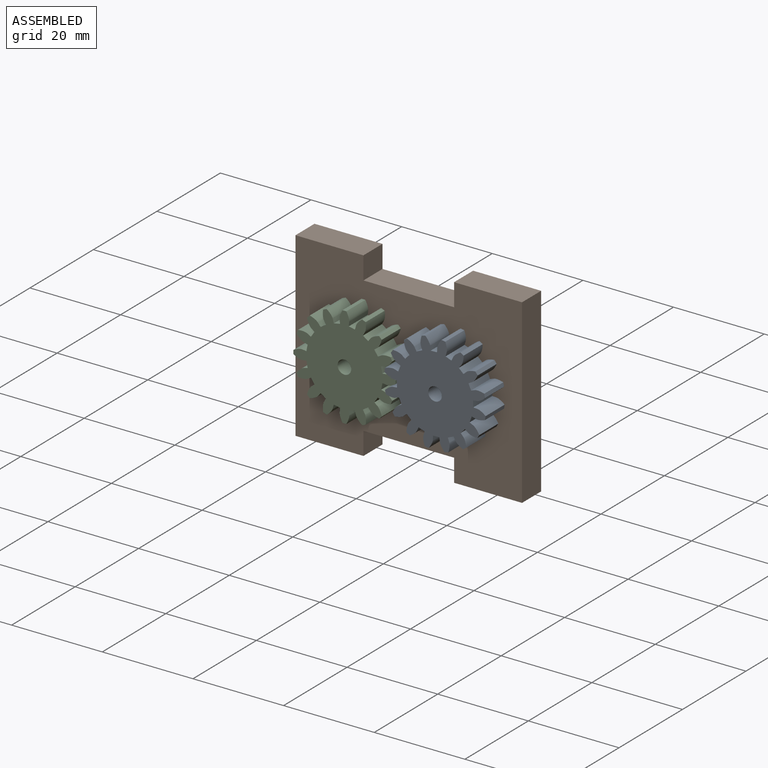
[diagram: assembled view]
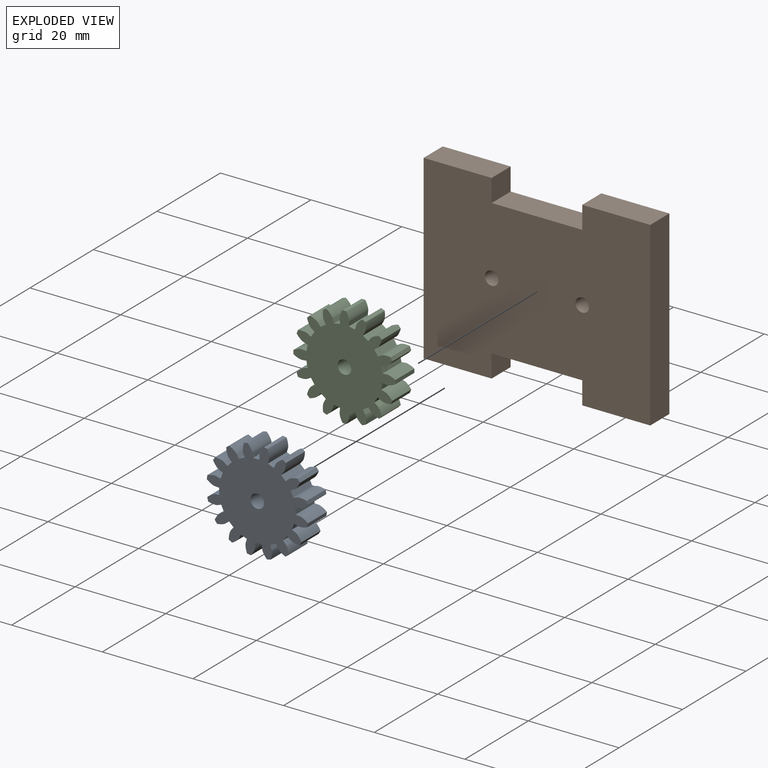
[diagram: exploded view]
GUIDED TOUR — MATED ASSEMBLY (Onshape document 47b93bef9e2b15a0956282d6, AutoMate assembly 47b93bef9e2b15a0956282d6_7f217ca19e8a99a7d8fff1dd_db07408e7a1c2a99573fbcf3_default)

This assembly has 3 components, labeled P0..P2 below (a component is one placed occurrence of a part; the same part can appear more than once), held together by 4 mates. A mate is a constraint between two components; its type names the relative motion it leaves free:
  CYLINDRICAL — leaves both rotation about and translation along the listed axis free,
  PLANAR — leaves sliding in the plane through the listed point (normal = the listed direction) and rotation about that normal free.
Axis/direction vectors are unit vectors and 'through' points are millimeter coordinates, both in the assembly's world frame.

MATES
  1. CYLINDRICAL "Cylindrical 2": P1 <-> P0, axis (0.000, -1.000, 0.000) through (31.80, -6.00, 12.39) mm
  2. PLANAR "Planar 1": P1 <-> P2, direction (0.000, -1.000, 0.000) through (21.80, -6.00, 12.39) mm
  3. CYLINDRICAL "Cylindrical 1": P1 <-> P2, axis (0.000, -1.000, 0.000) through (11.80, -6.00, 12.39) mm
  4. PLANAR "Planar 2": P1 <-> P0, direction (0.000, -1.000, 0.000) through (21.80, -6.00, 12.39) mm

ASSEMBLY ORDER
  1. P2 — the base component [order verified]
  2. P0 [order verified]
  3. P1 [order verified]
Order-tag legend:
  [order verified] — this step's position reverses a verified removal order: the component was checked to insert without passing through the ones already placed.

Of the 3 components, 3 carry the full construction recipe — the FeatureScript program that regenerates the part's solid from scratch; the rest are supplied as boundary geometry only.
Each toured component is shown spotlighted twice — in the assembled view, then in the exploded view, where a leader line traces a displaced component back to its assembled socket (saturated green if recipe-attached, orange if geometry-only; every other component desaturated gray) — followed by its recipe or geometry summary and the mates that hold it.
NOTE — this tour is split across 2 documents so each fits a 32k-token context. This is document 1: the component sections continue in the remaining 1 document, each repeating the header above.
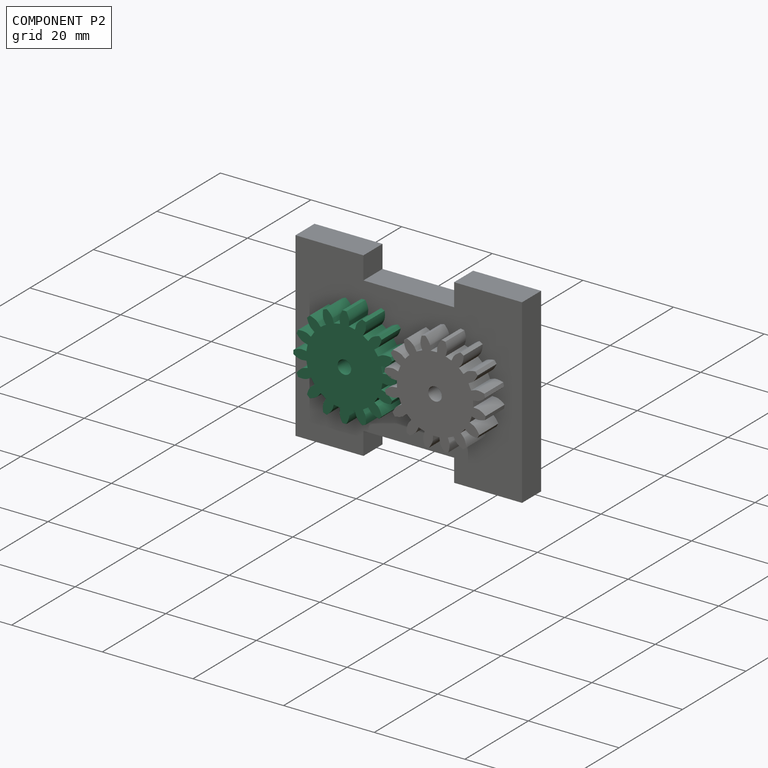
[diagram: component P2 — assembled]
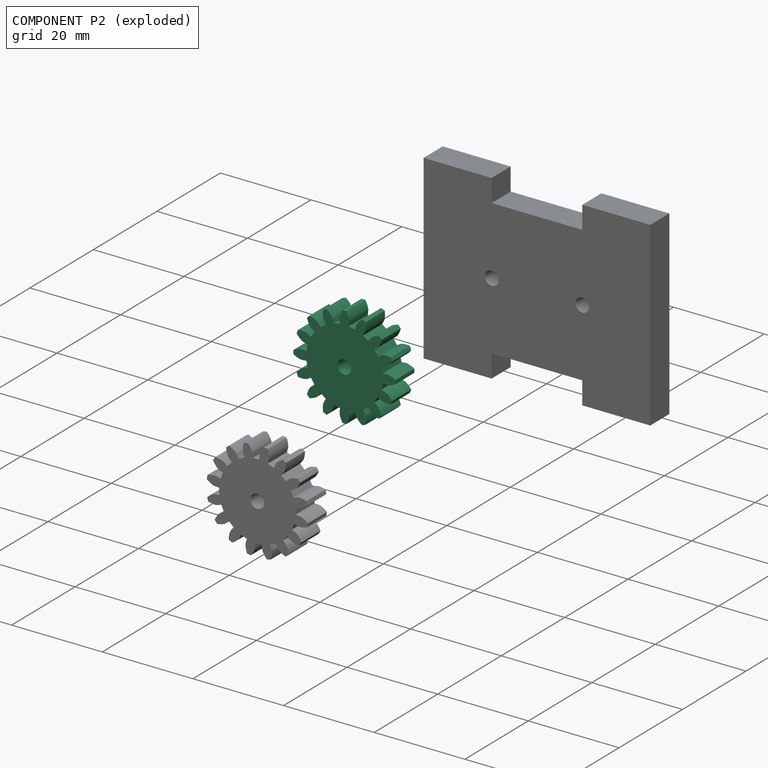
[diagram: component P2 — exploded]
COMPONENT P2 — same part as P0 (CADFS 00210149); its construction recipe is shown at P0.
Held by: PLANAR mate "Planar 1" to P1; CYLINDRICAL mate "Cylindrical 1" to P1.
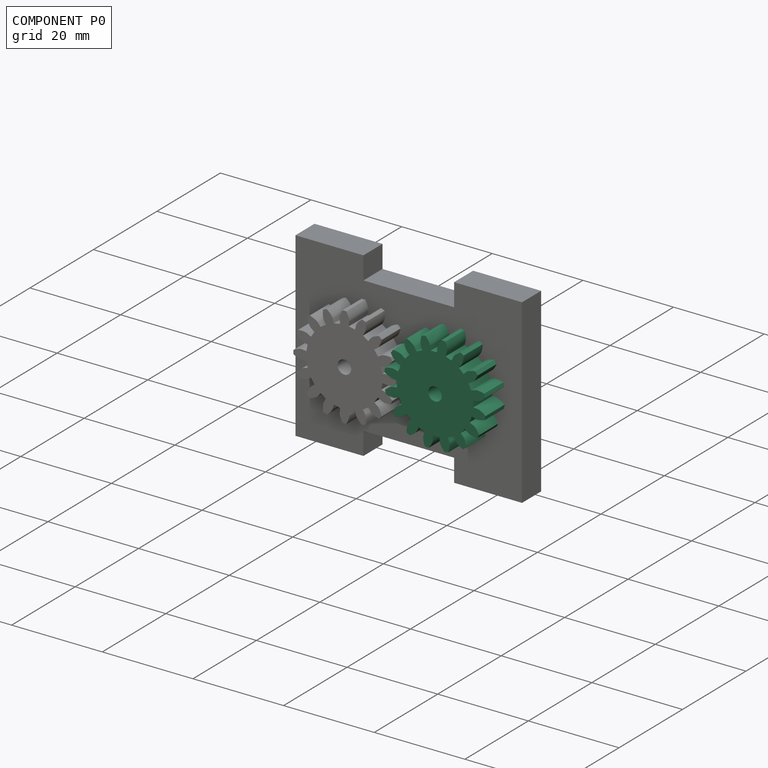
[diagram: component P0 — assembled]
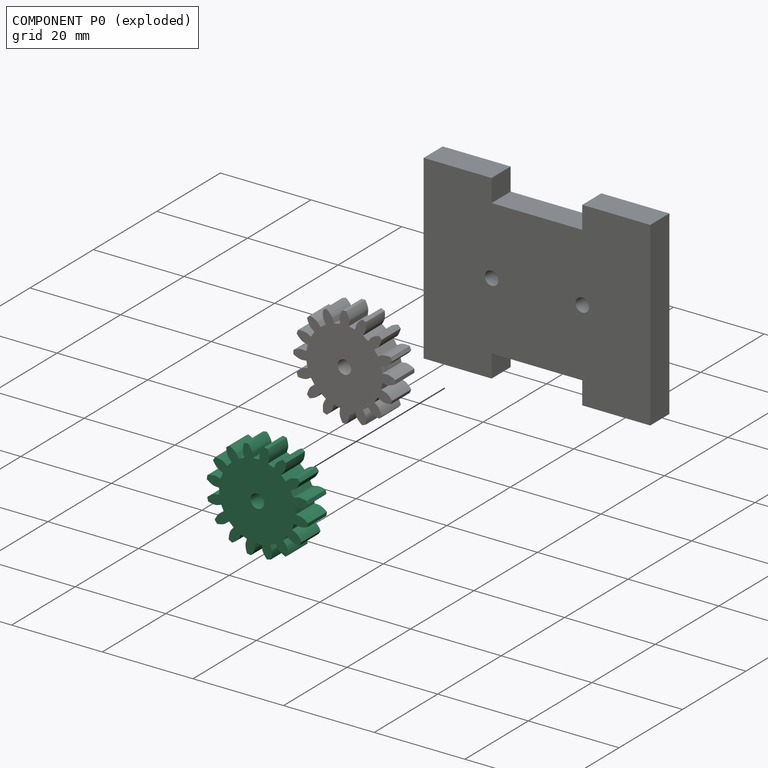
[diagram: component P0 — exploded]
COMPONENT P0 — recipe-attached (CADFS 00210149, mesh-verified: the recipe's output STEP matches this component's geometry to below the mesh-comparison resolution (tessellation chordal tolerance ~0.0485 mm)).
Held by: CYLINDRICAL mate "Cylindrical 2" to P1; PLANAR mate "Planar 2" to P1.
Construction recipe (FeatureScript — the CAD program that rebuilds this solid; sketch coordinates are in the units given by the * unit suffixes, e.g. mm):

FeatureScript 1511;
import(path : "onshape/std/geometry.fs", version : "1511.0");
import(path : "onshape/std/common.fs", version : "1511.0");
const mm = millimeter;
const VERTEX = EntityType.VERTEX;
const EDGE = EntityType.EDGE;
const FACE = EntityType.FACE;
const BODY = EntityType.BODY;
function v(x, y){return vector(x, y);}
function OD(order){return orderDisambiguation(order);}
function OSD(set){return originalSetDisambiguation(set);}
function TD(topology){return topologyDisambiguation(topology);}
function TDD(query){return trueDependencyDisambiguation(query);}
function sQuery(a, b, c) {return sketchEntityQuery(a, b, c);}

annotation { "Feature Type Name" : "Feature", "Feature Type Description" : "" }
export const myFeature = defineFeature(function(context is Context, id is Id, definition is map)
    precondition{}
    {
        {
            var Q0;
            Q0=qCreatedBy(makeId("Front.planeOp"),FACE);
            var sketch = newSketch(context, id + "F0", { "sketchPlane" : qUnion([Q0])});
            skLineSegment(sketch, "E0", {"start": v(8.38, -0.95) * mm, "end": v(9.34, -1.06) * mm});
            skLineSegment(sketch, "E1", {"start": v(9.34, -1.06) * mm, "end": v(9.39, -1.06) * mm});
            skLineSegment(sketch, "E2", {"start": v(9.39, -1.06) * mm, "end": v(9.44, -1.06) * mm});
            skLineSegment(sketch, "E3", {"start": v(9.44, -1.06) * mm, "end": v(9.5, -1.06) * mm});
            skLineSegment(sketch, "E4", {"start": v(9.5, -1.06) * mm, "end": v(9.56, -1.05) * mm});
            skLineSegment(sketch, "E5", {"start": v(9.56, -1.05) * mm, "end": v(9.62, -1.05) * mm});
            skLineSegment(sketch, "E6", {"start": v(9.62, -1.05) * mm, "end": v(9.68, -1.04) * mm});
            skLineSegment(sketch, "E7", {"start": v(9.68, -1.04) * mm, "end": v(9.75, -1.03) * mm});
            skLineSegment(sketch, "E8", {"start": v(9.75, -1.03) * mm, "end": v(9.82, -1.01) * mm});
            skLineSegment(sketch, "E9", {"start": v(9.82, -1.01) * mm, "end": v(9.88, -1) * mm});
            skLineSegment(sketch, "E10", {"start": v(9.88, -1) * mm, "end": v(9.93, -0.99) * mm});
            skLineSegment(sketch, "E11", {"start": v(9.93, -0.99) * mm, "end": v(9.99, -0.97) * mm});
            skLineSegment(sketch, "E12", {"start": v(9.99, -0.97) * mm, "end": v(10.05, -0.95) * mm});
            skLineSegment(sketch, "E13", {"start": v(10.05, -0.95) * mm, "end": v(10.11, -0.93) * mm});
            skLineSegment(sketch, "E14", {"start": v(10.11, -0.93) * mm, "end": v(10.18, -0.91) * mm});
            skLineSegment(sketch, "E15", {"start": v(10.18, -0.91) * mm, "end": v(10.25, -0.9) * mm});
            skLineSegment(sketch, "E16", {"start": v(10.25, -0.9) * mm, "end": v(10.32, -0.87) * mm});
            skLineSegment(sketch, "E17", {"start": v(10.32, -0.87) * mm, "end": v(10.39, -0.84) * mm});
            skLineSegment(sketch, "E18", {"start": v(10.39, -0.84) * mm, "end": v(10.46, -0.8) * mm});
            skLineSegment(sketch, "E19", {"start": v(10.46, -0.8) * mm, "end": v(10.54, -0.78) * mm});
            skLineSegment(sketch, "E20", {"start": v(10.54, -0.78) * mm, "end": v(10.62, -0.74) * mm});
            skLineSegment(sketch, "E21", {"start": v(10.62, -0.74) * mm, "end": v(10.7, -0.7) * mm});
            skLineSegment(sketch, "E22", {"start": v(10.7, -0.7) * mm, "end": v(10.78, -0.67) * mm});
            skLineSegment(sketch, "E23", {"start": v(10.78, -0.67) * mm, "end": v(10.87, -0.63) * mm});
            skLineSegment(sketch, "E24", {"start": v(10.87, -0.63) * mm, "end": v(10.95, -0.58) * mm});
            skLineSegment(sketch, "E25", {"start": v(10.95, -0.58) * mm, "end": v(11.04, -0.53) * mm});
            skLineSegment(sketch, "E26", {"start": v(11.04, -0.53) * mm, "end": v(11.09, -0.5) * mm});
            skLineSegment(sketch, "E27", {"start": v(11.09, -0.5) * mm, "end": v(11.13, -0.48) * mm});
            skLineSegment(sketch, "E28", {"start": v(11.13, -0.48) * mm, "end": v(11.18, -0.46) * mm});
            skLineSegment(sketch, "E29", {"start": v(11.18, -0.46) * mm, "end": v(11.24, -0.42) * mm});
            skLineSegment(sketch, "E30", {"start": v(11.24, -0.42) * mm, "end": v(11.24, 0.42) * mm});
            skLineSegment(sketch, "E31", {"start": v(11.24, 0.42) * mm, "end": v(11.18, 0.46) * mm});
            skLineSegment(sketch, "E32", {"start": v(11.18, 0.46) * mm, "end": v(11.13, 0.48) * mm});
            skLineSegment(sketch, "E33", {"start": v(11.13, 0.48) * mm, "end": v(11.09, 0.5) * mm});
            skLineSegment(sketch, "E34", {"start": v(11.09, 0.5) * mm, "end": v(11.04, 0.53) * mm});
            skLineSegment(sketch, "E35", {"start": v(11.04, 0.53) * mm, "end": v(10.95, 0.58) * mm});
            skLineSegment(sketch, "E36", {"start": v(10.95, 0.58) * mm, "end": v(10.87, 0.63) * mm});
            skLineSegment(sketch, "E37", {"start": v(10.87, 0.63) * mm, "end": v(10.78, 0.67) * mm});
            skLineSegment(sketch, "E38", {"start": v(10.78, 0.67) * mm, "end": v(10.7, 0.7) * mm});
            skLineSegment(sketch, "E39", {"start": v(10.7, 0.7) * mm, "end": v(10.62, 0.74) * mm});
            skLineSegment(sketch, "E40", {"start": v(10.62, 0.74) * mm, "end": v(10.54, 0.78) * mm});
            skLineSegment(sketch, "E41", {"start": v(10.54, 0.78) * mm, "end": v(10.46, 0.8) * mm});
            skLineSegment(sketch, "E42", {"start": v(10.46, 0.8) * mm, "end": v(10.39, 0.84) * mm});
            skLineSegment(sketch, "E43", {"start": v(10.39, 0.84) * mm, "end": v(10.32, 0.87) * mm});
            skLineSegment(sketch, "E44", {"start": v(10.32, 0.87) * mm, "end": v(10.25, 0.9) * mm});
            skLineSegment(sketch, "E45", {"start": v(10.25, 0.9) * mm, "end": v(10.18, 0.91) * mm});
            skLineSegment(sketch, "E46", {"start": v(10.18, 0.91) * mm, "end": v(10.11, 0.93) * mm});
            skLineSegment(sketch, "E47", {"start": v(10.11, 0.93) * mm, "end": v(10.05, 0.95) * mm});
            skLineSegment(sketch, "E48", {"start": v(10.05, 0.95) * mm, "end": v(9.99, 0.97) * mm});
            skLineSegment(sketch, "E49", {"start": v(9.99, 0.97) * mm, "end": v(9.93, 0.99) * mm});
            skLineSegment(sketch, "E50", {"start": v(9.93, 0.99) * mm, "end": v(9.88, 1) * mm});
            skLineSegment(sketch, "E51", {"start": v(9.88, 1) * mm, "end": v(9.82, 1.01) * mm});
            skLineSegment(sketch, "E52", {"start": v(9.82, 1.01) * mm, "end": v(9.75, 1.03) * mm});
            skLineSegment(sketch, "E53", {"start": v(9.75, 1.03) * mm, "end": v(9.68, 1.04) * mm});
            skLineSegment(sketch, "E54", {"start": v(9.68, 1.04) * mm, "end": v(9.62, 1.05) * mm});
            skLineSegment(sketch, "E55", {"start": v(9.62, 1.05) * mm, "end": v(9.56, 1.05) * mm});
            skLineSegment(sketch, "E56", {"start": v(9.56, 1.05) * mm, "end": v(9.5, 1.06) * mm});
            skLineSegment(sketch, "E57", {"start": v(9.5, 1.06) * mm, "end": v(9.44, 1.06) * mm});
            skLineSegment(sketch, "E58", {"start": v(9.44, 1.06) * mm, "end": v(9.39, 1.06) * mm});
            skLineSegment(sketch, "E59", {"start": v(9.39, 1.06) * mm, "end": v(9.34, 1.06) * mm});
            skLineSegment(sketch, "E60", {"start": v(9.34, 1.06) * mm, "end": v(8.38, 0.95) * mm});
            skArc(sketch, "E61", {"start": v(8.38, 0.95) * mm, "mid": v(8.25, 1.64) * mm, "end": v(8.1, 2.33) * mm});
            skLineSegment(sketch, "E62", {"start": v(8.1, 2.33) * mm, "end": v(9.03, 2.6) * mm});
            skLineSegment(sketch, "E63", {"start": v(9.03, 2.6) * mm, "end": v(9.08, 2.61) * mm});
            skLineSegment(sketch, "E64", {"start": v(9.08, 2.61) * mm, "end": v(9.13, 2.63) * mm});
            skLineSegment(sketch, "E65", {"start": v(9.13, 2.63) * mm, "end": v(9.18, 2.65) * mm});
            skLineSegment(sketch, "E66", {"start": v(9.18, 2.65) * mm, "end": v(9.24, 2.69) * mm});
            skLineSegment(sketch, "E67", {"start": v(9.24, 2.69) * mm, "end": v(9.29, 2.71) * mm});
            skLineSegment(sketch, "E68", {"start": v(9.29, 2.71) * mm, "end": v(9.34, 2.75) * mm});
            skLineSegment(sketch, "E69", {"start": v(9.34, 2.75) * mm, "end": v(9.4, 2.78) * mm});
            skLineSegment(sketch, "E70", {"start": v(9.4, 2.78) * mm, "end": v(9.46, 2.83) * mm});
            skLineSegment(sketch, "E71", {"start": v(9.46, 2.83) * mm, "end": v(9.5, 2.86) * mm});
            skLineSegment(sketch, "E72", {"start": v(9.5, 2.86) * mm, "end": v(9.55, 2.9) * mm});
            skLineSegment(sketch, "E73", {"start": v(9.55, 2.9) * mm, "end": v(9.6, 2.93) * mm});
            skLineSegment(sketch, "E74", {"start": v(9.6, 2.93) * mm, "end": v(9.65, 2.97) * mm});
            skLineSegment(sketch, "E75", {"start": v(9.65, 2.97) * mm, "end": v(9.7, 3) * mm});
            skLineSegment(sketch, "E76", {"start": v(9.7, 3) * mm, "end": v(9.75, 3.05) * mm});
            skLineSegment(sketch, "E77", {"start": v(9.75, 3.05) * mm, "end": v(9.8, 3.1) * mm});
            skLineSegment(sketch, "E78", {"start": v(9.8, 3.1) * mm, "end": v(9.86, 3.15) * mm});
            skLineSegment(sketch, "E79", {"start": v(9.86, 3.15) * mm, "end": v(9.92, 3.2) * mm});
            skLineSegment(sketch, "E80", {"start": v(9.92, 3.2) * mm, "end": v(9.98, 3.26) * mm});
            skLineSegment(sketch, "E81", {"start": v(9.98, 3.26) * mm, "end": v(10.04, 3.31) * mm});
            skLineSegment(sketch, "E82", {"start": v(10.04, 3.31) * mm, "end": v(10.1, 3.38) * mm});
            skLineSegment(sketch, "E83", {"start": v(10.1, 3.38) * mm, "end": v(10.16, 3.44) * mm});
            skLineSegment(sketch, "E84", {"start": v(10.16, 3.44) * mm, "end": v(10.22, 3.5) * mm});
            skLineSegment(sketch, "E85", {"start": v(10.22, 3.5) * mm, "end": v(10.28, 3.58) * mm});
            skLineSegment(sketch, "E86", {"start": v(10.28, 3.58) * mm, "end": v(10.34, 3.66) * mm});
            skLineSegment(sketch, "E87", {"start": v(10.34, 3.66) * mm, "end": v(10.4, 3.73) * mm});
            skLineSegment(sketch, "E88", {"start": v(10.4, 3.73) * mm, "end": v(10.44, 3.77) * mm});
            skLineSegment(sketch, "E89", {"start": v(10.44, 3.77) * mm, "end": v(10.47, 3.81) * mm});
            skLineSegment(sketch, "E90", {"start": v(10.47, 3.81) * mm, "end": v(10.5, 3.86) * mm});
            skLineSegment(sketch, "E91", {"start": v(10.5, 3.86) * mm, "end": v(10.55, 3.92) * mm});
            skLineSegment(sketch, "E92", {"start": v(10.55, 3.92) * mm, "end": v(10.23, 4.69) * mm});
            skLineSegment(sketch, "E93", {"start": v(10.23, 4.69) * mm, "end": v(10.15, 4.7) * mm});
            skLineSegment(sketch, "E94", {"start": v(10.15, 4.7) * mm, "end": v(10.1, 4.7) * mm});
            skLineSegment(sketch, "E95", {"start": v(10.1, 4.7) * mm, "end": v(10.05, 4.71) * mm});
            skLineSegment(sketch, "E96", {"start": v(10.05, 4.71) * mm, "end": v(10, 4.72) * mm});
            skLineSegment(sketch, "E97", {"start": v(10, 4.72) * mm, "end": v(9.9, 4.73) * mm});
            skLineSegment(sketch, "E98", {"start": v(9.9, 4.73) * mm, "end": v(9.8, 4.74) * mm});
            skLineSegment(sketch, "E99", {"start": v(9.8, 4.74) * mm, "end": v(9.7, 4.74) * mm});
            skLineSegment(sketch, "E100", {"start": v(9.7, 4.74) * mm, "end": v(9.62, 4.75) * mm});
            skLineSegment(sketch, "E101", {"start": v(9.62, 4.75) * mm, "end": v(9.53, 4.75) * mm});
            skLineSegment(sketch, "E102", {"start": v(9.53, 4.75) * mm, "end": v(9.44, 4.75) * mm});
            skLineSegment(sketch, "E103", {"start": v(9.44, 4.75) * mm, "end": v(9.36, 4.75) * mm});
            skLineSegment(sketch, "E104", {"start": v(9.36, 4.75) * mm, "end": v(9.28, 4.75) * mm});
            skLineSegment(sketch, "E105", {"start": v(9.28, 4.75) * mm, "end": v(9.2, 4.75) * mm});
            skLineSegment(sketch, "E106", {"start": v(9.2, 4.75) * mm, "end": v(9.13, 4.74) * mm});
            skLineSegment(sketch, "E107", {"start": v(9.13, 4.74) * mm, "end": v(9.05, 4.74) * mm});
            skLineSegment(sketch, "E108", {"start": v(9.05, 4.74) * mm, "end": v(8.99, 4.73) * mm});
            skLineSegment(sketch, "E109", {"start": v(8.99, 4.73) * mm, "end": v(8.92, 4.73) * mm});
            skLineSegment(sketch, "E110", {"start": v(8.92, 4.73) * mm, "end": v(8.86, 4.72) * mm});
            skLineSegment(sketch, "E111", {"start": v(8.86, 4.72) * mm, "end": v(8.8, 4.71) * mm});
            skLineSegment(sketch, "E112", {"start": v(8.8, 4.71) * mm, "end": v(8.74, 4.7) * mm});
            skLineSegment(sketch, "E113", {"start": v(8.74, 4.7) * mm, "end": v(8.69, 4.7) * mm});
            skLineSegment(sketch, "E114", {"start": v(8.69, 4.7) * mm, "end": v(8.61, 4.68) * mm});
            skLineSegment(sketch, "E115", {"start": v(8.61, 4.68) * mm, "end": v(8.55, 4.66) * mm});
            skLineSegment(sketch, "E116", {"start": v(8.55, 4.66) * mm, "end": v(8.48, 4.65) * mm});
            skLineSegment(sketch, "E117", {"start": v(8.48, 4.65) * mm, "end": v(8.43, 4.63) * mm});
            skLineSegment(sketch, "E118", {"start": v(8.43, 4.63) * mm, "end": v(8.37, 4.61) * mm});
            skLineSegment(sketch, "E119", {"start": v(8.37, 4.61) * mm, "end": v(8.32, 4.6) * mm});
            skLineSegment(sketch, "E120", {"start": v(8.32, 4.6) * mm, "end": v(8.27, 4.57) * mm});
            skLineSegment(sketch, "E121", {"start": v(8.27, 4.57) * mm, "end": v(8.22, 4.55) * mm});
            skLineSegment(sketch, "E122", {"start": v(8.22, 4.55) * mm, "end": v(7.38, 4.09) * mm});
            skArc(sketch, "E123", {"start": v(7.38, 4.09) * mm, "mid": v(7, 4.67) * mm, "end": v(6.6, 5.25) * mm});
            skLineSegment(sketch, "E124", {"start": v(6.6, 5.25) * mm, "end": v(7.35, 5.85) * mm});
            skLineSegment(sketch, "E125", {"start": v(7.35, 5.85) * mm, "end": v(7.39, 5.89) * mm});
            skLineSegment(sketch, "E126", {"start": v(7.39, 5.89) * mm, "end": v(7.43, 5.92) * mm});
            skLineSegment(sketch, "E127", {"start": v(7.43, 5.92) * mm, "end": v(7.46, 5.96) * mm});
            skLineSegment(sketch, "E128", {"start": v(7.46, 5.96) * mm, "end": v(7.5, 6.02) * mm});
            skLineSegment(sketch, "E129", {"start": v(7.5, 6.02) * mm, "end": v(7.54, 6.06) * mm});
            skLineSegment(sketch, "E130", {"start": v(7.54, 6.06) * mm, "end": v(7.58, 6.11) * mm});
            skLineSegment(sketch, "E131", {"start": v(7.58, 6.11) * mm, "end": v(7.62, 6.17) * mm});
            skLineSegment(sketch, "E132", {"start": v(7.62, 6.17) * mm, "end": v(7.66, 6.23) * mm});
            skLineSegment(sketch, "E133", {"start": v(7.66, 6.23) * mm, "end": v(7.69, 6.28) * mm});
            skLineSegment(sketch, "E134", {"start": v(7.69, 6.28) * mm, "end": v(7.72, 6.33) * mm});
            skLineSegment(sketch, "E135", {"start": v(7.72, 6.33) * mm, "end": v(7.75, 6.38) * mm});
            skLineSegment(sketch, "E136", {"start": v(7.75, 6.38) * mm, "end": v(7.78, 6.43) * mm});
            skLineSegment(sketch, "E137", {"start": v(7.78, 6.43) * mm, "end": v(7.81, 6.5) * mm});
            skLineSegment(sketch, "E138", {"start": v(7.81, 6.5) * mm, "end": v(7.84, 6.55) * mm});
            skLineSegment(sketch, "E139", {"start": v(7.84, 6.55) * mm, "end": v(7.88, 6.62) * mm});
            skLineSegment(sketch, "E140", {"start": v(7.88, 6.62) * mm, "end": v(7.9, 6.68) * mm});
            skLineSegment(sketch, "E141", {"start": v(7.9, 6.68) * mm, "end": v(7.94, 6.75) * mm});
            skLineSegment(sketch, "E142", {"start": v(7.94, 6.75) * mm, "end": v(7.97, 6.83) * mm});
            skLineSegment(sketch, "E143", {"start": v(7.97, 6.83) * mm, "end": v(8, 6.9) * mm});
            skLineSegment(sketch, "E144", {"start": v(8, 6.9) * mm, "end": v(8.04, 6.98) * mm});
            skLineSegment(sketch, "E145", {"start": v(8.04, 6.98) * mm, "end": v(8.07, 7.07) * mm});
            skLineSegment(sketch, "E146", {"start": v(8.07, 7.07) * mm, "end": v(8.1, 7.15) * mm});
            skLineSegment(sketch, "E147", {"start": v(8.1, 7.15) * mm, "end": v(8.13, 7.24) * mm});
            skLineSegment(sketch, "E148", {"start": v(8.13, 7.24) * mm, "end": v(8.16, 7.33) * mm});
            skLineSegment(sketch, "E149", {"start": v(8.16, 7.33) * mm, "end": v(8.18, 7.43) * mm});
            skLineSegment(sketch, "E150", {"start": v(8.18, 7.43) * mm, "end": v(8.2, 7.48) * mm});
            skLineSegment(sketch, "E151", {"start": v(8.2, 7.48) * mm, "end": v(8.21, 7.53) * mm});
            skLineSegment(sketch, "E152", {"start": v(8.21, 7.53) * mm, "end": v(8.23, 7.58) * mm});
            skLineSegment(sketch, "E153", {"start": v(8.23, 7.58) * mm, "end": v(8.24, 7.66) * mm});
            skLineSegment(sketch, "E154", {"start": v(8.24, 7.66) * mm, "end": v(7.66, 8.24) * mm});
            skLineSegment(sketch, "E155", {"start": v(7.66, 8.24) * mm, "end": v(7.58, 8.23) * mm});
            skLineSegment(sketch, "E156", {"start": v(7.58, 8.23) * mm, "end": v(7.53, 8.21) * mm});
            skLineSegment(sketch, "E157", {"start": v(7.53, 8.21) * mm, "end": v(7.48, 8.2) * mm});
            skLineSegment(sketch, "E158", {"start": v(7.48, 8.2) * mm, "end": v(7.43, 8.18) * mm});
            skLineSegment(sketch, "E159", {"start": v(7.43, 8.18) * mm, "end": v(7.33, 8.16) * mm});
            skLineSegment(sketch, "E160", {"start": v(7.33, 8.16) * mm, "end": v(7.24, 8.13) * mm});
            skLineSegment(sketch, "E161", {"start": v(7.24, 8.13) * mm, "end": v(7.15, 8.1) * mm});
            skLineSegment(sketch, "E162", {"start": v(7.15, 8.1) * mm, "end": v(7.07, 8.07) * mm});
            skLineSegment(sketch, "E163", {"start": v(7.07, 8.07) * mm, "end": v(6.98, 8.04) * mm});
            skLineSegment(sketch, "E164", {"start": v(6.98, 8.04) * mm, "end": v(6.9, 8) * mm});
            skLineSegment(sketch, "E165", {"start": v(6.9, 8) * mm, "end": v(6.83, 7.97) * mm});
            skLineSegment(sketch, "E166", {"start": v(6.83, 7.97) * mm, "end": v(6.75, 7.94) * mm});
            skLineSegment(sketch, "E167", {"start": v(6.75, 7.94) * mm, "end": v(6.68, 7.9) * mm});
            skLineSegment(sketch, "E168", {"start": v(6.68, 7.9) * mm, "end": v(6.62, 7.88) * mm});
            skLineSegment(sketch, "E169", {"start": v(6.62, 7.88) * mm, "end": v(6.55, 7.84) * mm});
            skLineSegment(sketch, "E170", {"start": v(6.55, 7.84) * mm, "end": v(6.5, 7.81) * mm});
            skLineSegment(sketch, "E171", {"start": v(6.5, 7.81) * mm, "end": v(6.43, 7.78) * mm});
            skLineSegment(sketch, "E172", {"start": v(6.43, 7.78) * mm, "end": v(6.38, 7.75) * mm});
            skLineSegment(sketch, "E173", {"start": v(6.38, 7.75) * mm, "end": v(6.33, 7.72) * mm});
            skLineSegment(sketch, "E174", {"start": v(6.33, 7.72) * mm, "end": v(6.28, 7.69) * mm});
            skLineSegment(sketch, "E175", {"start": v(6.28, 7.69) * mm, "end": v(6.23, 7.66) * mm});
            skLineSegment(sketch, "E176", {"start": v(6.23, 7.66) * mm, "end": v(6.17, 7.62) * mm});
            skLineSegment(sketch, "E177", {"start": v(6.17, 7.62) * mm, "end": v(6.11, 7.58) * mm});
            skLineSegment(sketch, "E178", {"start": v(6.11, 7.58) * mm, "end": v(6.06, 7.54) * mm});
            skLineSegment(sketch, "E179", {"start": v(6.06, 7.54) * mm, "end": v(6.02, 7.5) * mm});
            skLineSegment(sketch, "E180", {"start": v(6.02, 7.5) * mm, "end": v(5.96, 7.46) * mm});
            skLineSegment(sketch, "E181", {"start": v(5.96, 7.46) * mm, "end": v(5.92, 7.43) * mm});
            skLineSegment(sketch, "E182", {"start": v(5.92, 7.43) * mm, "end": v(5.89, 7.39) * mm});
            skLineSegment(sketch, "E183", {"start": v(5.89, 7.39) * mm, "end": v(5.85, 7.35) * mm});
            skLineSegment(sketch, "E184", {"start": v(5.85, 7.35) * mm, "end": v(5.25, 6.6) * mm});
            skArc(sketch, "E185", {"start": v(5.25, 6.6) * mm, "mid": v(4.67, 7) * mm, "end": v(4.09, 7.38) * mm});
            skLineSegment(sketch, "E186", {"start": v(4.09, 7.38) * mm, "end": v(4.55, 8.22) * mm});
            skLineSegment(sketch, "E187", {"start": v(4.55, 8.22) * mm, "end": v(4.57, 8.27) * mm});
            skLineSegment(sketch, "E188", {"start": v(4.57, 8.27) * mm, "end": v(4.6, 8.32) * mm});
            skLineSegment(sketch, "E189", {"start": v(4.6, 8.32) * mm, "end": v(4.61, 8.37) * mm});
            skLineSegment(sketch, "E190", {"start": v(4.61, 8.37) * mm, "end": v(4.63, 8.43) * mm});
            skLineSegment(sketch, "E191", {"start": v(4.63, 8.43) * mm, "end": v(4.65, 8.48) * mm});
            skLineSegment(sketch, "E192", {"start": v(4.65, 8.48) * mm, "end": v(4.66, 8.55) * mm});
            skLineSegment(sketch, "E193", {"start": v(4.66, 8.55) * mm, "end": v(4.68, 8.61) * mm});
            skLineSegment(sketch, "E194", {"start": v(4.68, 8.61) * mm, "end": v(4.7, 8.69) * mm});
            skLineSegment(sketch, "E195", {"start": v(4.7, 8.69) * mm, "end": v(4.7, 8.74) * mm});
            skLineSegment(sketch, "E196", {"start": v(4.7, 8.74) * mm, "end": v(4.71, 8.8) * mm});
            skLineSegment(sketch, "E197", {"start": v(4.71, 8.8) * mm, "end": v(4.72, 8.86) * mm});
            skLineSegment(sketch, "E198", {"start": v(4.72, 8.86) * mm, "end": v(4.73, 8.92) * mm});
            skLineSegment(sketch, "E199", {"start": v(4.73, 8.92) * mm, "end": v(4.73, 8.99) * mm});
            skLineSegment(sketch, "E200", {"start": v(4.73, 8.99) * mm, "end": v(4.74, 9.05) * mm});
            skLineSegment(sketch, "E201", {"start": v(4.74, 9.05) * mm, "end": v(4.74, 9.13) * mm});
            skLineSegment(sketch, "E202", {"start": v(4.74, 9.13) * mm, "end": v(4.75, 9.2) * mm});
            skLineSegment(sketch, "E203", {"start": v(4.75, 9.2) * mm, "end": v(4.75, 9.28) * mm});
            skLineSegment(sketch, "E204", {"start": v(4.75, 9.28) * mm, "end": v(4.75, 9.36) * mm});
            skLineSegment(sketch, "E205", {"start": v(4.75, 9.36) * mm, "end": v(4.75, 9.44) * mm});
            skLineSegment(sketch, "E206", {"start": v(4.75, 9.44) * mm, "end": v(4.75, 9.53) * mm});
            skLineSegment(sketch, "E207", {"start": v(4.75, 9.53) * mm, "end": v(4.75, 9.62) * mm});
            skLineSegment(sketch, "E208", {"start": v(4.75, 9.62) * mm, "end": v(4.74, 9.7) * mm});
            skLineSegment(sketch, "E209", {"start": v(4.74, 9.7) * mm, "end": v(4.74, 9.8) * mm});
            skLineSegment(sketch, "E210", {"start": v(4.74, 9.8) * mm, "end": v(4.73, 9.9) * mm});
            skLineSegment(sketch, "E211", {"start": v(4.73, 9.9) * mm, "end": v(4.72, 10) * mm});
            skLineSegment(sketch, "E212", {"start": v(4.72, 10) * mm, "end": v(4.71, 10.05) * mm});
            skLineSegment(sketch, "E213", {"start": v(4.71, 10.05) * mm, "end": v(4.7, 10.1) * mm});
            skLineSegment(sketch, "E214", {"start": v(4.7, 10.1) * mm, "end": v(4.7, 10.15) * mm});
            skLineSegment(sketch, "E215", {"start": v(4.7, 10.15) * mm, "end": v(4.69, 10.23) * mm});
            skLineSegment(sketch, "E216", {"start": v(4.69, 10.23) * mm, "end": v(3.92, 10.55) * mm});
            skLineSegment(sketch, "E217", {"start": v(3.92, 10.55) * mm, "end": v(3.86, 10.5) * mm});
            skLineSegment(sketch, "E218", {"start": v(3.86, 10.5) * mm, "end": v(3.81, 10.47) * mm});
            skLineSegment(sketch, "E219", {"start": v(3.81, 10.47) * mm, "end": v(3.77, 10.44) * mm});
            skLineSegment(sketch, "E220", {"start": v(3.77, 10.44) * mm, "end": v(3.73, 10.4) * mm});
            skLineSegment(sketch, "E221", {"start": v(3.73, 10.4) * mm, "end": v(3.66, 10.34) * mm});
            skLineSegment(sketch, "E222", {"start": v(3.66, 10.34) * mm, "end": v(3.58, 10.28) * mm});
            skLineSegment(sketch, "E223", {"start": v(3.58, 10.28) * mm, "end": v(3.5, 10.22) * mm});
            skLineSegment(sketch, "E224", {"start": v(3.5, 10.22) * mm, "end": v(3.44, 10.16) * mm});
            skLineSegment(sketch, "E225", {"start": v(3.44, 10.16) * mm, "end": v(3.38, 10.1) * mm});
            skLineSegment(sketch, "E226", {"start": v(3.38, 10.1) * mm, "end": v(3.31, 10.04) * mm});
            skLineSegment(sketch, "E227", {"start": v(3.31, 10.04) * mm, "end": v(3.26, 9.98) * mm});
            skLineSegment(sketch, "E228", {"start": v(3.26, 9.98) * mm, "end": v(3.2, 9.92) * mm});
            skLineSegment(sketch, "E229", {"start": v(3.2, 9.92) * mm, "end": v(3.15, 9.86) * mm});
            skLineSegment(sketch, "E230", {"start": v(3.15, 9.86) * mm, "end": v(3.1, 9.8) * mm});
            skLineSegment(sketch, "E231", {"start": v(3.1, 9.8) * mm, "end": v(3.05, 9.75) * mm});
            skLineSegment(sketch, "E232", {"start": v(3.05, 9.75) * mm, "end": v(3, 9.7) * mm});
            skLineSegment(sketch, "E233", {"start": v(3, 9.7) * mm, "end": v(2.97, 9.65) * mm});
            skLineSegment(sketch, "E234", {"start": v(2.97, 9.65) * mm, "end": v(2.93, 9.6) * mm});
            skLineSegment(sketch, "E235", {"start": v(2.93, 9.6) * mm, "end": v(2.9, 9.55) * mm});
            skLineSegment(sketch, "E236", {"start": v(2.9, 9.55) * mm, "end": v(2.86, 9.5) * mm});
            skLineSegment(sketch, "E237", {"start": v(2.86, 9.5) * mm, "end": v(2.83, 9.46) * mm});
            skLineSegment(sketch, "E238", {"start": v(2.83, 9.46) * mm, "end": v(2.78, 9.4) * mm});
            skLineSegment(sketch, "E239", {"start": v(2.78, 9.4) * mm, "end": v(2.75, 9.34) * mm});
            skLineSegment(sketch, "E240", {"start": v(2.75, 9.34) * mm, "end": v(2.71, 9.29) * mm});
            skLineSegment(sketch, "E241", {"start": v(2.71, 9.29) * mm, "end": v(2.69, 9.24) * mm});
            skLineSegment(sketch, "E242", {"start": v(2.69, 9.24) * mm, "end": v(2.65, 9.18) * mm});
            skLineSegment(sketch, "E243", {"start": v(2.65, 9.18) * mm, "end": v(2.63, 9.13) * mm});
            skLineSegment(sketch, "E244", {"start": v(2.63, 9.13) * mm, "end": v(2.61, 9.08) * mm});
            skLineSegment(sketch, "E245", {"start": v(2.61, 9.08) * mm, "end": v(2.6, 9.03) * mm});
            skLineSegment(sketch, "E246", {"start": v(2.6, 9.03) * mm, "end": v(2.33, 8.1) * mm});
            skArc(sketch, "E247", {"start": v(2.33, 8.1) * mm, "mid": v(1.64, 8.25) * mm, "end": v(0.95, 8.38) * mm});
            skLineSegment(sketch, "E248", {"start": v(0.95, 8.38) * mm, "end": v(1.06, 9.34) * mm});
            skLineSegment(sketch, "E249", {"start": v(1.06, 9.34) * mm, "end": v(1.06, 9.39) * mm});
            skLineSegment(sketch, "E250", {"start": v(1.06, 9.39) * mm, "end": v(1.06, 9.44) * mm});
            skLineSegment(sketch, "E251", {"start": v(1.06, 9.44) * mm, "end": v(1.06, 9.5) * mm});
            skLineSegment(sketch, "E252", {"start": v(1.06, 9.5) * mm, "end": v(1.05, 9.56) * mm});
            skLineSegment(sketch, "E253", {"start": v(1.05, 9.56) * mm, "end": v(1.05, 9.62) * mm});
            skLineSegment(sketch, "E254", {"start": v(1.05, 9.62) * mm, "end": v(1.04, 9.68) * mm});
            skLineSegment(sketch, "E255", {"start": v(1.04, 9.68) * mm, "end": v(1.03, 9.75) * mm});
            skLineSegment(sketch, "E256", {"start": v(1.03, 9.75) * mm, "end": v(1.01, 9.82) * mm});
            skLineSegment(sketch, "E257", {"start": v(1.01, 9.82) * mm, "end": v(1, 9.88) * mm});
            skLineSegment(sketch, "E258", {"start": v(1, 9.88) * mm, "end": v(0.99, 9.93) * mm});
            skLineSegment(sketch, "E259", {"start": v(0.99, 9.93) * mm, "end": v(0.97, 9.99) * mm});
            skLineSegment(sketch, "E260", {"start": v(0.97, 9.99) * mm, "end": v(0.95, 10.05) * mm});
            skLineSegment(sketch, "E261", {"start": v(0.95, 10.05) * mm, "end": v(0.93, 10.11) * mm});
            skLineSegment(sketch, "E262", {"start": v(0.93, 10.11) * mm, "end": v(0.91, 10.18) * mm});
            skLineSegment(sketch, "E263", {"start": v(0.91, 10.18) * mm, "end": v(0.9, 10.25) * mm});
            skLineSegment(sketch, "E264", {"start": v(0.9, 10.25) * mm, "end": v(0.87, 10.32) * mm});
            skLineSegment(sketch, "E265", {"start": v(0.87, 10.32) * mm, "end": v(0.84, 10.39) * mm});
            skLineSegment(sketch, "E266", {"start": v(0.84, 10.39) * mm, "end": v(0.8, 10.46) * mm});
            skLineSegment(sketch, "E267", {"start": v(0.8, 10.46) * mm, "end": v(0.78, 10.54) * mm});
            skLineSegment(sketch, "E268", {"start": v(0.78, 10.54) * mm, "end": v(0.74, 10.62) * mm});
            skLineSegment(sketch, "E269", {"start": v(0.74, 10.62) * mm, "end": v(0.7, 10.7) * mm});
            skLineSegment(sketch, "E270", {"start": v(0.7, 10.7) * mm, "end": v(0.67, 10.78) * mm});
            skLineSegment(sketch, "E271", {"start": v(0.67, 10.78) * mm, "end": v(0.63, 10.87) * mm});
            skLineSegment(sketch, "E272", {"start": v(0.63, 10.87) * mm, "end": v(0.58, 10.95) * mm});
            skLineSegment(sketch, "E273", {"start": v(0.58, 10.95) * mm, "end": v(0.53, 11.04) * mm});
            skLineSegment(sketch, "E274", {"start": v(0.53, 11.04) * mm, "end": v(0.5, 11.09) * mm});
            skLineSegment(sketch, "E275", {"start": v(0.5, 11.09) * mm, "end": v(0.48, 11.13) * mm});
            skLineSegment(sketch, "E276", {"start": v(0.48, 11.13) * mm, "end": v(0.46, 11.18) * mm});
            skLineSegment(sketch, "E277", {"start": v(0.46, 11.18) * mm, "end": v(0.42, 11.24) * mm});
            skLineSegment(sketch, "E278", {"start": v(0.42, 11.24) * mm, "end": v(-0.42, 11.24) * mm});
            skLineSegment(sketch, "E279", {"start": v(-0.42, 11.24) * mm, "end": v(-0.46, 11.18) * mm});
            skLineSegment(sketch, "E280", {"start": v(-0.46, 11.18) * mm, "end": v(-0.48, 11.13) * mm});
            skLineSegment(sketch, "E281", {"start": v(-0.48, 11.13) * mm, "end": v(-0.5, 11.09) * mm});
            skLineSegment(sketch, "E282", {"start": v(-0.5, 11.09) * mm, "end": v(-0.53, 11.04) * mm});
            skLineSegment(sketch, "E283", {"start": v(-0.53, 11.04) * mm, "end": v(-0.58, 10.95) * mm});
            skLineSegment(sketch, "E284", {"start": v(-0.58, 10.95) * mm, "end": v(-0.63, 10.87) * mm});
            skLineSegment(sketch, "E285", {"start": v(-0.63, 10.87) * mm, "end": v(-0.67, 10.78) * mm});
            skLineSegment(sketch, "E286", {"start": v(-0.67, 10.78) * mm, "end": v(-0.7, 10.7) * mm});
            skLineSegment(sketch, "E287", {"start": v(-0.7, 10.7) * mm, "end": v(-0.74, 10.62) * mm});
            skLineSegment(sketch, "E288", {"start": v(-0.74, 10.62) * mm, "end": v(-0.78, 10.54) * mm});
            skLineSegment(sketch, "E289", {"start": v(-0.78, 10.54) * mm, "end": v(-0.8, 10.46) * mm});
            skLineSegment(sketch, "E290", {"start": v(-0.8, 10.46) * mm, "end": v(-0.84, 10.39) * mm});
            skLineSegment(sketch, "E291", {"start": v(-0.84, 10.39) * mm, "end": v(-0.87, 10.32) * mm});
            skLineSegment(sketch, "E292", {"start": v(-0.87, 10.32) * mm, "end": v(-0.9, 10.25) * mm});
            skLineSegment(sketch, "E293", {"start": v(-0.9, 10.25) * mm, "end": v(-0.91, 10.18) * mm});
            skLineSegment(sketch, "E294", {"start": v(-0.91, 10.18) * mm, "end": v(-0.93, 10.11) * mm});
            skLineSegment(sketch, "E295", {"start": v(-0.93, 10.11) * mm, "end": v(-0.95, 10.05) * mm});
            skLineSegment(sketch, "E296", {"start": v(-0.95, 10.05) * mm, "end": v(-0.97, 9.99) * mm});
            skLineSegment(sketch, "E297", {"start": v(-0.97, 9.99) * mm, "end": v(-0.99, 9.93) * mm});
            skLineSegment(sketch, "E298", {"start": v(-0.99, 9.93) * mm, "end": v(-1, 9.88) * mm});
            skLineSegment(sketch, "E299", {"start": v(-1, 9.88) * mm, "end": v(-1.01, 9.82) * mm});
            skLineSegment(sketch, "E300", {"start": v(-1.01, 9.82) * mm, "end": v(-1.03, 9.75) * mm});
            skLineSegment(sketch, "E301", {"start": v(-1.03, 9.75) * mm, "end": v(-1.04, 9.68) * mm});
            skLineSegment(sketch, "E302", {"start": v(-1.04, 9.68) * mm, "end": v(-1.05, 9.62) * mm});
            skLineSegment(sketch, "E303", {"start": v(-1.05, 9.62) * mm, "end": v(-1.05, 9.56) * mm});
            skLineSegment(sketch, "E304", {"start": v(-1.05, 9.56) * mm, "end": v(-1.06, 9.5) * mm});
            skLineSegment(sketch, "E305", {"start": v(-1.06, 9.5) * mm, "end": v(-1.06, 9.44) * mm});
            skLineSegment(sketch, "E306", {"start": v(-1.06, 9.44) * mm, "end": v(-1.06, 9.39) * mm});
            skLineSegment(sketch, "E307", {"start": v(-1.06, 9.39) * mm, "end": v(-1.06, 9.34) * mm});
            skLineSegment(sketch, "E308", {"start": v(-1.06, 9.34) * mm, "end": v(-0.95, 8.38) * mm});
            skArc(sketch, "E309", {"start": v(-0.95, 8.38) * mm, "mid": v(-1.64, 8.25) * mm, "end": v(-2.33, 8.1) * mm});
            skLineSegment(sketch, "E310", {"start": v(-2.33, 8.1) * mm, "end": v(-2.6, 9.03) * mm});
            skLineSegment(sketch, "E311", {"start": v(-2.6, 9.03) * mm, "end": v(-2.61, 9.08) * mm});
            skLineSegment(sketch, "E312", {"start": v(-2.61, 9.08) * mm, "end": v(-2.63, 9.13) * mm});
            skLineSegment(sketch, "E313", {"start": v(-2.63, 9.13) * mm, "end": v(-2.65, 9.18) * mm});
            skLineSegment(sketch, "E314", {"start": v(-2.65, 9.18) * mm, "end": v(-2.69, 9.24) * mm});
            skLineSegment(sketch, "E315", {"start": v(-2.69, 9.24) * mm, "end": v(-2.71, 9.29) * mm});
            skLineSegment(sketch, "E316", {"start": v(-2.71, 9.29) * mm, "end": v(-2.75, 9.34) * mm});
            skLineSegment(sketch, "E317", {"start": v(-2.75, 9.34) * mm, "end": v(-2.78, 9.4) * mm});
            skLineSegment(sketch, "E318", {"start": v(-2.78, 9.4) * mm, "end": v(-2.83, 9.46) * mm});
            skLineSegment(sketch, "E319", {"start": v(-2.83, 9.46) * mm, "end": v(-2.86, 9.5) * mm});
            skLineSegment(sketch, "E320", {"start": v(-2.86, 9.5) * mm, "end": v(-2.9, 9.55) * mm});
            skLineSegment(sketch, "E321", {"start": v(-2.9, 9.55) * mm, "end": v(-2.93, 9.6) * mm});
            skLineSegment(sketch, "E322", {"start": v(-2.93, 9.6) * mm, "end": v(-2.97, 9.65) * mm});
            skLineSegment(sketch, "E323", {"start": v(-2.97, 9.65) * mm, "end": v(-3, 9.7) * mm});
            skLineSegment(sketch, "E324", {"start": v(-3, 9.7) * mm, "end": v(-3.05, 9.75) * mm});
            skLineSegment(sketch, "E325", {"start": v(-3.05, 9.75) * mm, "end": v(-3.1, 9.8) * mm});
            skLineSegment(sketch, "E326", {"start": v(-3.1, 9.8) * mm, "end": v(-3.15, 9.86) * mm});
            skLineSegment(sketch, "E327", {"start": v(-3.15, 9.86) * mm, "end": v(-3.2, 9.92) * mm});
            skLineSegment(sketch, "E328", {"start": v(-3.2, 9.92) * mm, "end": v(-3.26, 9.98) * mm});
            skLineSegment(sketch, "E329", {"start": v(-3.26, 9.98) * mm, "end": v(-3.31, 10.04) * mm});
            skLineSegment(sketch, "E330", {"start": v(-3.31, 10.04) * mm, "end": v(-3.38, 10.1) * mm});
            skLineSegment(sketch, "E331", {"start": v(-3.38, 10.1) * mm, "end": v(-3.44, 10.16) * mm});
            skLineSegment(sketch, "E332", {"start": v(-3.44, 10.16) * mm, "end": v(-3.5, 10.22) * mm});
            skLineSegment(sketch, "E333", {"start": v(-3.5, 10.22) * mm, "end": v(-3.58, 10.28) * mm});
            skLineSegment(sketch, "E334", {"start": v(-3.58, 10.28) * mm, "end": v(-3.66, 10.34) * mm});
            skLineSegment(sketch, "E335", {"start": v(-3.66, 10.34) * mm, "end": v(-3.73, 10.4) * mm});
            skLineSegment(sketch, "E336", {"start": v(-3.73, 10.4) * mm, "end": v(-3.77, 10.44) * mm});
            skLineSegment(sketch, "E337", {"start": v(-3.77, 10.44) * mm, "end": v(-3.81, 10.47) * mm});
            skLineSegment(sketch, "E338", {"start": v(-3.81, 10.47) * mm, "end": v(-3.86, 10.5) * mm});
            skLineSegment(sketch, "E339", {"start": v(-3.86, 10.5) * mm, "end": v(-3.92, 10.55) * mm});
            skLineSegment(sketch, "E340", {"start": v(-3.92, 10.55) * mm, "end": v(-4.69, 10.23) * mm});
            skLineSegment(sketch, "E341", {"start": v(-4.69, 10.23) * mm, "end": v(-4.7, 10.15) * mm});
            skLineSegment(sketch, "E342", {"start": v(-4.7, 10.15) * mm, "end": v(-4.7, 10.1) * mm});
            skLineSegment(sketch, "E343", {"start": v(-4.7, 10.1) * mm, "end": v(-4.71, 10.05) * mm});
            skLineSegment(sketch, "E344", {"start": v(-4.71, 10.05) * mm, "end": v(-4.72, 10) * mm});
            skLineSegment(sketch, "E345", {"start": v(-4.72, 10) * mm, "end": v(-4.73, 9.9) * mm});
            skLineSegment(sketch, "E346", {"start": v(-4.73, 9.9) * mm, "end": v(-4.74, 9.8) * mm});
            skLineSegment(sketch, "E347", {"start": v(-4.74, 9.8) * mm, "end": v(-4.74, 9.7) * mm});
            skLineSegment(sketch, "E348", {"start": v(-4.74, 9.7) * mm, "end": v(-4.75, 9.62) * mm});
            skLineSegment(sketch, "E349", {"start": v(-4.75, 9.62) * mm, "end": v(-4.75, 9.53) * mm});
            skLineSegment(sketch, "E350", {"start": v(-4.75, 9.53) * mm, "end": v(-4.75, 9.44) * mm});
            skLineSegment(sketch, "E351", {"start": v(-4.75, 9.44) * mm, "end": v(-4.75, 9.36) * mm});
            skLineSegment(sketch, "E352", {"start": v(-4.75, 9.36) * mm, "end": v(-4.75, 9.28) * mm});
            skLineSegment(sketch, "E353", {"start": v(-4.75, 9.28) * mm, "end": v(-4.75, 9.2) * mm});
            skLineSegment(sketch, "E354", {"start": v(-4.75, 9.2) * mm, "end": v(-4.74, 9.13) * mm});
            skLineSegment(sketch, "E355", {"start": v(-4.74, 9.13) * mm, "end": v(-4.74, 9.05) * mm});
            skLineSegment(sketch, "E356", {"start": v(-4.74, 9.05) * mm, "end": v(-4.73, 8.99) * mm});
            skLineSegment(sketch, "E357", {"start": v(-4.73, 8.99) * mm, "end": v(-4.73, 8.92) * mm});
            skLineSegment(sketch, "E358", {"start": v(-4.73, 8.92) * mm, "end": v(-4.72, 8.86) * mm});
            skLineSegment(sketch, "E359", {"start": v(-4.72, 8.86) * mm, "end": v(-4.71, 8.8) * mm});
            skLineSegment(sketch, "E360", {"start": v(-4.71, 8.8) * mm, "end": v(-4.7, 8.74) * mm});
            skLineSegment(sketch, "E361", {"start": v(-4.7, 8.74) * mm, "end": v(-4.7, 8.69) * mm});
            skLineSegment(sketch, "E362", {"start": v(-4.7, 8.69) * mm, "end": v(-4.68, 8.61) * mm});
            skLineSegment(sketch, "E363", {"start": v(-4.68, 8.61) * mm, "end": v(-4.66, 8.55) * mm});
            skLineSegment(sketch, "E364", {"start": v(-4.66, 8.55) * mm, "end": v(-4.65, 8.48) * mm});
            skLineSegment(sketch, "E365", {"start": v(-4.65, 8.48) * mm, "end": v(-4.63, 8.43) * mm});
            skLineSegment(sketch, "E366", {"start": v(-4.63, 8.43) * mm, "end": v(-4.61, 8.37) * mm});
            skLineSegment(sketch, "E367", {"start": v(-4.61, 8.37) * mm, "end": v(-4.6, 8.32) * mm});
            skLineSegment(sketch, "E368", {"start": v(-4.6, 8.32) * mm, "end": v(-4.57, 8.27) * mm});
            skLineSegment(sketch, "E369", {"start": v(-4.57, 8.27) * mm, "end": v(-4.55, 8.22) * mm});
            skLineSegment(sketch, "E370", {"start": v(-4.55, 8.22) * mm, "end": v(-4.09, 7.38) * mm});
            skArc(sketch, "E371", {"start": v(-4.09, 7.38) * mm, "mid": v(-4.67, 7) * mm, "end": v(-5.25, 6.6) * mm});
            skLineSegment(sketch, "E372", {"start": v(-5.25, 6.6) * mm, "end": v(-5.85, 7.35) * mm});
            skLineSegment(sketch, "E373", {"start": v(-5.85, 7.35) * mm, "end": v(-5.89, 7.39) * mm});
            skLineSegment(sketch, "E374", {"start": v(-5.89, 7.39) * mm, "end": v(-5.92, 7.43) * mm});
            skLineSegment(sketch, "E375", {"start": v(-5.92, 7.43) * mm, "end": v(-5.96, 7.46) * mm});
            skLineSegment(sketch, "E376", {"start": v(-5.96, 7.46) * mm, "end": v(-6.02, 7.5) * mm});
            skLineSegment(sketch, "E377", {"start": v(-6.02, 7.5) * mm, "end": v(-6.06, 7.54) * mm});
            skLineSegment(sketch, "E378", {"start": v(-6.06, 7.54) * mm, "end": v(-6.11, 7.58) * mm});
            skLineSegment(sketch, "E379", {"start": v(-6.11, 7.58) * mm, "end": v(-6.17, 7.62) * mm});
            skLineSegment(sketch, "E380", {"start": v(-6.17, 7.62) * mm, "end": v(-6.23, 7.66) * mm});
            skLineSegment(sketch, "E381", {"start": v(-6.23, 7.66) * mm, "end": v(-6.28, 7.69) * mm});
            skLineSegment(sketch, "E382", {"start": v(-6.28, 7.69) * mm, "end": v(-6.33, 7.72) * mm});
            skLineSegment(sketch, "E383", {"start": v(-6.33, 7.72) * mm, "end": v(-6.38, 7.75) * mm});
            skLineSegment(sketch, "E384", {"start": v(-6.38, 7.75) * mm, "end": v(-6.43, 7.78) * mm});
            skLineSegment(sketch, "E385", {"start": v(-6.43, 7.78) * mm, "end": v(-6.5, 7.81) * mm});
            skLineSegment(sketch, "E386", {"start": v(-6.5, 7.81) * mm, "end": v(-6.55, 7.84) * mm});
            skLineSegment(sketch, "E387", {"start": v(-6.55, 7.84) * mm, "end": v(-6.62, 7.88) * mm});
            skLineSegment(sketch, "E388", {"start": v(-6.62, 7.88) * mm, "end": v(-6.68, 7.9) * mm});
            skLineSegment(sketch, "E389", {"start": v(-6.68, 7.9) * mm, "end": v(-6.75, 7.94) * mm});
            skLineSegment(sketch, "E390", {"start": v(-6.75, 7.94) * mm, "end": v(-6.83, 7.97) * mm});
            skLineSegment(sketch, "E391", {"start": v(-6.83, 7.97) * mm, "end": v(-6.9, 8) * mm});
            skLineSegment(sketch, "E392", {"start": v(-6.9, 8) * mm, "end": v(-6.98, 8.04) * mm});
            skLineSegment(sketch, "E393", {"start": v(-6.98, 8.04) * mm, "end": v(-7.07, 8.07) * mm});
            skLineSegment(sketch, "E394", {"start": v(-7.07, 8.07) * mm, "end": v(-7.15, 8.1) * mm});
            skLineSegment(sketch, "E395", {"start": v(-7.15, 8.1) * mm, "end": v(-7.24, 8.13) * mm});
            skLineSegment(sketch, "E396", {"start": v(-7.24, 8.13) * mm, "end": v(-7.33, 8.16) * mm});
            skLineSegment(sketch, "E397", {"start": v(-7.33, 8.16) * mm, "end": v(-7.43, 8.18) * mm});
            skLineSegment(sketch, "E398", {"start": v(-7.43, 8.18) * mm, "end": v(-7.48, 8.2) * mm});
            skLineSegment(sketch, "E399", {"start": v(-7.48, 8.2) * mm, "end": v(-7.53, 8.21) * mm});
            skLineSegment(sketch, "E400", {"start": v(-7.53, 8.21) * mm, "end": v(-7.58, 8.23) * mm});
            skLineSegment(sketch, "E401", {"start": v(-7.58, 8.23) * mm, "end": v(-7.66, 8.24) * mm});
            skLineSegment(sketch, "E402", {"start": v(-7.66, 8.24) * mm, "end": v(-8.24, 7.66) * mm});
            skLineSegment(sketch, "E403", {"start": v(-8.24, 7.66) * mm, "end": v(-8.23, 7.58) * mm});
            skLineSegment(sketch, "E404", {"start": v(-8.23, 7.58) * mm, "end": v(-8.21, 7.53) * mm});
            skLineSegment(sketch, "E405", {"start": v(-8.21, 7.53) * mm, "end": v(-8.2, 7.48) * mm});
            skLineSegment(sketch, "E406", {"start": v(-8.2, 7.48) * mm, "end": v(-8.18, 7.43) * mm});
            skLineSegment(sketch, "E407", {"start": v(-8.18, 7.43) * mm, "end": v(-8.16, 7.33) * mm});
            skLineSegment(sketch, "E408", {"start": v(-8.16, 7.33) * mm, "end": v(-8.13, 7.24) * mm});
            skLineSegment(sketch, "E409", {"start": v(-8.13, 7.24) * mm, "end": v(-8.1, 7.15) * mm});
            skLineSegment(sketch, "E410", {"start": v(-8.1, 7.15) * mm, "end": v(-8.07, 7.07) * mm});
            skLineSegment(sketch, "E411", {"start": v(-8.07, 7.07) * mm, "end": v(-8.04, 6.98) * mm});
            skLineSegment(sketch, "E412", {"start": v(-8.04, 6.98) * mm, "end": v(-8, 6.9) * mm});
            skLineSegment(sketch, "E413", {"start": v(-8, 6.9) * mm, "end": v(-7.97, 6.83) * mm});
            skLineSegment(sketch, "E414", {"start": v(-7.97, 6.83) * mm, "end": v(-7.94, 6.75) * mm});
            skLineSegment(sketch, "E415", {"start": v(-7.94, 6.75) * mm, "end": v(-7.9, 6.68) * mm});
            skLineSegment(sketch, "E416", {"start": v(-7.9, 6.68) * mm, "end": v(-7.88, 6.62) * mm});
            skLineSegment(sketch, "E417", {"start": v(-7.88, 6.62) * mm, "end": v(-7.84, 6.55) * mm});
            skLineSegment(sketch, "E418", {"start": v(-7.84, 6.55) * mm, "end": v(-7.81, 6.5) * mm});
            skLineSegment(sketch, "E419", {"start": v(-7.81, 6.5) * mm, "end": v(-7.78, 6.43) * mm});
            skLineSegment(sketch, "E420", {"start": v(-7.78, 6.43) * mm, "end": v(-7.75, 6.38) * mm});
            skLineSegment(sketch, "E421", {"start": v(-7.75, 6.38) * mm, "end": v(-7.72, 6.33) * mm});
            skLineSegment(sketch, "E422", {"start": v(-7.72, 6.33) * mm, "end": v(-7.69, 6.28) * mm});
            skLineSegment(sketch, "E423", {"start": v(-7.69, 6.28) * mm, "end": v(-7.66, 6.23) * mm});
            skLineSegment(sketch, "E424", {"start": v(-7.66, 6.23) * mm, "end": v(-7.62, 6.17) * mm});
            skLineSegment(sketch, "E425", {"start": v(-7.62, 6.17) * mm, "end": v(-7.58, 6.11) * mm});
            skLineSegment(sketch, "E426", {"start": v(-7.58, 6.11) * mm, "end": v(-7.54, 6.06) * mm});
            skLineSegment(sketch, "E427", {"start": v(-7.54, 6.06) * mm, "end": v(-7.5, 6.02) * mm});
            skLineSegment(sketch, "E428", {"start": v(-7.5, 6.02) * mm, "end": v(-7.46, 5.96) * mm});
            skLineSegment(sketch, "E429", {"start": v(-7.46, 5.96) * mm, "end": v(-7.43, 5.92) * mm});
            skLineSegment(sketch, "E430", {"start": v(-7.43, 5.92) * mm, "end": v(-7.39, 5.89) * mm});
            skLineSegment(sketch, "E431", {"start": v(-7.39, 5.89) * mm, "end": v(-7.35, 5.85) * mm});
            skLineSegment(sketch, "E432", {"start": v(-7.35, 5.85) * mm, "end": v(-6.6, 5.25) * mm});
            skArc(sketch, "E433", {"start": v(-6.6, 5.25) * mm, "mid": v(-7, 4.67) * mm, "end": v(-7.38, 4.09) * mm});
            skLineSegment(sketch, "E434", {"start": v(-7.38, 4.09) * mm, "end": v(-8.22, 4.55) * mm});
            skLineSegment(sketch, "E435", {"start": v(-8.22, 4.55) * mm, "end": v(-8.27, 4.57) * mm});
            skLineSegment(sketch, "E436", {"start": v(-8.27, 4.57) * mm, "end": v(-8.32, 4.6) * mm});
            skLineSegment(sketch, "E437", {"start": v(-8.32, 4.6) * mm, "end": v(-8.37, 4.61) * mm});
            skLineSegment(sketch, "E438", {"start": v(-8.37, 4.61) * mm, "end": v(-8.43, 4.63) * mm});
            skLineSegment(sketch, "E439", {"start": v(-8.43, 4.63) * mm, "end": v(-8.48, 4.65) * mm});
            skLineSegment(sketch, "E440", {"start": v(-8.48, 4.65) * mm, "end": v(-8.55, 4.66) * mm});
            skLineSegment(sketch, "E441", {"start": v(-8.55, 4.66) * mm, "end": v(-8.61, 4.68) * mm});
            skLineSegment(sketch, "E442", {"start": v(-8.61, 4.68) * mm, "end": v(-8.69, 4.7) * mm});
            skLineSegment(sketch, "E443", {"start": v(-8.69, 4.7) * mm, "end": v(-8.74, 4.7) * mm});
            skLineSegment(sketch, "E444", {"start": v(-8.74, 4.7) * mm, "end": v(-8.8, 4.71) * mm});
            skLineSegment(sketch, "E445", {"start": v(-8.8, 4.71) * mm, "end": v(-8.86, 4.72) * mm});
            skLineSegment(sketch, "E446", {"start": v(-8.86, 4.72) * mm, "end": v(-8.92, 4.73) * mm});
            skLineSegment(sketch, "E447", {"start": v(-8.92, 4.73) * mm, "end": v(-8.99, 4.73) * mm});
            skLineSegment(sketch, "E448", {"start": v(-8.99, 4.73) * mm, "end": v(-9.05, 4.74) * mm});
            skLineSegment(sketch, "E449", {"start": v(-9.05, 4.74) * mm, "end": v(-9.13, 4.74) * mm});
            skLineSegment(sketch, "E450", {"start": v(-9.13, 4.74) * mm, "end": v(-9.2, 4.75) * mm});
            skLineSegment(sketch, "E451", {"start": v(-9.2, 4.75) * mm, "end": v(-9.28, 4.75) * mm});
            skLineSegment(sketch, "E452", {"start": v(-9.28, 4.75) * mm, "end": v(-9.36, 4.75) * mm});
            skLineSegment(sketch, "E453", {"start": v(-9.36, 4.75) * mm, "end": v(-9.44, 4.75) * mm});
            skLineSegment(sketch, "E454", {"start": v(-9.44, 4.75) * mm, "end": v(-9.53, 4.75) * mm});
            skLineSegment(sketch, "E455", {"start": v(-9.53, 4.75) * mm, "end": v(-9.62, 4.75) * mm});
            skLineSegment(sketch, "E456", {"start": v(-9.62, 4.75) * mm, "end": v(-9.7, 4.74) * mm});
            skLineSegment(sketch, "E457", {"start": v(-9.7, 4.74) * mm, "end": v(-9.8, 4.74) * mm});
            skLineSegment(sketch, "E458", {"start": v(-9.8, 4.74) * mm, "end": v(-9.9, 4.73) * mm});
            skLineSegment(sketch, "E459", {"start": v(-9.9, 4.73) * mm, "end": v(-10, 4.72) * mm});
            skLineSegment(sketch, "E460", {"start": v(-10, 4.72) * mm, "end": v(-10.05, 4.71) * mm});
            skLineSegment(sketch, "E461", {"start": v(-10.05, 4.71) * mm, "end": v(-10.1, 4.7) * mm});
            skLineSegment(sketch, "E462", {"start": v(-10.1, 4.7) * mm, "end": v(-10.15, 4.7) * mm});
            skLineSegment(sketch, "E463", {"start": v(-10.15, 4.7) * mm, "end": v(-10.23, 4.69) * mm});
            skLineSegment(sketch, "E464", {"start": v(-10.23, 4.69) * mm, "end": v(-10.55, 3.92) * mm});
            skLineSegment(sketch, "E465", {"start": v(-10.55, 3.92) * mm, "end": v(-10.5, 3.86) * mm});
            skLineSegment(sketch, "E466", {"start": v(-10.5, 3.86) * mm, "end": v(-10.47, 3.81) * mm});
            skLineSegment(sketch, "E467", {"start": v(-10.47, 3.81) * mm, "end": v(-10.44, 3.77) * mm});
            skLineSegment(sketch, "E468", {"start": v(-10.44, 3.77) * mm, "end": v(-10.4, 3.73) * mm});
            skLineSegment(sketch, "E469", {"start": v(-10.4, 3.73) * mm, "end": v(-10.34, 3.66) * mm});
            skLineSegment(sketch, "E470", {"start": v(-10.34, 3.66) * mm, "end": v(-10.28, 3.58) * mm});
            skLineSegment(sketch, "E471", {"start": v(-10.28, 3.58) * mm, "end": v(-10.22, 3.5) * mm});
            skLineSegment(sketch, "E472", {"start": v(-10.22, 3.5) * mm, "end": v(-10.16, 3.44) * mm});
            skLineSegment(sketch, "E473", {"start": v(-10.16, 3.44) * mm, "end": v(-10.1, 3.38) * mm});
            skLineSegment(sketch, "E474", {"start": v(-10.1, 3.38) * mm, "end": v(-10.04, 3.31) * mm});
            skLineSegment(sketch, "E475", {"start": v(-10.04, 3.31) * mm, "end": v(-9.98, 3.26) * mm});
            skLineSegment(sketch, "E476", {"start": v(-9.98, 3.26) * mm, "end": v(-9.92, 3.2) * mm});
            skLineSegment(sketch, "E477", {"start": v(-9.92, 3.2) * mm, "end": v(-9.86, 3.15) * mm});
            skLineSegment(sketch, "E478", {"start": v(-9.86, 3.15) * mm, "end": v(-9.8, 3.1) * mm});
            skLineSegment(sketch, "E479", {"start": v(-9.8, 3.1) * mm, "end": v(-9.75, 3.05) * mm});
            skLineSegment(sketch, "E480", {"start": v(-9.75, 3.05) * mm, "end": v(-9.7, 3) * mm});
            skLineSegment(sketch, "E481", {"start": v(-9.7, 3) * mm, "end": v(-9.65, 2.97) * mm});
            skLineSegment(sketch, "E482", {"start": v(-9.65, 2.97) * mm, "end": v(-9.6, 2.93) * mm});
            skLineSegment(sketch, "E483", {"start": v(-9.6, 2.93) * mm, "end": v(-9.55, 2.9) * mm});
            skLineSegment(sketch, "E484", {"start": v(-9.55, 2.9) * mm, "end": v(-9.5, 2.86) * mm});
            skLineSegment(sketch, "E485", {"start": v(-9.5, 2.86) * mm, "end": v(-9.46, 2.83) * mm});
            skLineSegment(sketch, "E486", {"start": v(-9.46, 2.83) * mm, "end": v(-9.4, 2.78) * mm});
            skLineSegment(sketch, "E487", {"start": v(-9.4, 2.78) * mm, "end": v(-9.34, 2.75) * mm});
            skLineSegment(sketch, "E488", {"start": v(-9.34, 2.75) * mm, "end": v(-9.29, 2.71) * mm});
            skLineSegment(sketch, "E489", {"start": v(-9.29, 2.71) * mm, "end": v(-9.24, 2.69) * mm});
            skLineSegment(sketch, "E490", {"start": v(-9.24, 2.69) * mm, "end": v(-9.18, 2.65) * mm});
            skLineSegment(sketch, "E491", {"start": v(-9.18, 2.65) * mm, "end": v(-9.13, 2.63) * mm});
            skLineSegment(sketch, "E492", {"start": v(-9.13, 2.63) * mm, "end": v(-9.08, 2.61) * mm});
            skLineSegment(sketch, "E493", {"start": v(-9.08, 2.61) * mm, "end": v(-9.03, 2.6) * mm});
            skLineSegment(sketch, "E494", {"start": v(-9.03, 2.6) * mm, "end": v(-8.1, 2.33) * mm});
            skArc(sketch, "E495", {"start": v(-8.1, 2.33) * mm, "mid": v(-8.25, 1.64) * mm, "end": v(-8.38, 0.95) * mm});
            skLineSegment(sketch, "E496", {"start": v(-8.38, 0.95) * mm, "end": v(-9.34, 1.06) * mm});
            skLineSegment(sketch, "E497", {"start": v(-9.34, 1.06) * mm, "end": v(-9.39, 1.06) * mm});
            skLineSegment(sketch, "E498", {"start": v(-9.39, 1.06) * mm, "end": v(-9.44, 1.06) * mm});
            skLineSegment(sketch, "E499", {"start": v(-9.44, 1.06) * mm, "end": v(-9.5, 1.06) * mm});
            skLineSegment(sketch, "E500", {"start": v(-9.5, 1.06) * mm, "end": v(-9.56, 1.05) * mm});
            skLineSegment(sketch, "E501", {"start": v(-9.56, 1.05) * mm, "end": v(-9.62, 1.05) * mm});
            skLineSegment(sketch, "E502", {"start": v(-9.62, 1.05) * mm, "end": v(-9.68, 1.04) * mm});
            skLineSegment(sketch, "E503", {"start": v(-9.68, 1.04) * mm, "end": v(-9.75, 1.03) * mm});
            skLineSegment(sketch, "E504", {"start": v(-9.75, 1.03) * mm, "end": v(-9.82, 1.01) * mm});
            skLineSegment(sketch, "E505", {"start": v(-9.82, 1.01) * mm, "end": v(-9.88, 1) * mm});
            skLineSegment(sketch, "E506", {"start": v(-9.88, 1) * mm, "end": v(-9.93, 0.99) * mm});
            skLineSegment(sketch, "E507", {"start": v(-9.93, 0.99) * mm, "end": v(-9.99, 0.97) * mm});
            skLineSegment(sketch, "E508", {"start": v(-9.99, 0.97) * mm, "end": v(-10.05, 0.95) * mm});
            skLineSegment(sketch, "E509", {"start": v(-10.05, 0.95) * mm, "end": v(-10.11, 0.93) * mm});
            skLineSegment(sketch, "E510", {"start": v(-10.11, 0.93) * mm, "end": v(-10.18, 0.91) * mm});
            skLineSegment(sketch, "E511", {"start": v(-10.18, 0.91) * mm, "end": v(-10.25, 0.9) * mm});
            skLineSegment(sketch, "E512", {"start": v(-10.25, 0.9) * mm, "end": v(-10.32, 0.87) * mm});
            skLineSegment(sketch, "E513", {"start": v(-10.32, 0.87) * mm, "end": v(-10.39, 0.84) * mm});
            skLineSegment(sketch, "E514", {"start": v(-10.39, 0.84) * mm, "end": v(-10.46, 0.8) * mm});
            skLineSegment(sketch, "E515", {"start": v(-10.46, 0.8) * mm, "end": v(-10.54, 0.78) * mm});
            skLineSegment(sketch, "E516", {"start": v(-10.54, 0.78) * mm, "end": v(-10.62, 0.74) * mm});
            skLineSegment(sketch, "E517", {"start": v(-10.62, 0.74) * mm, "end": v(-10.7, 0.7) * mm});
            skLineSegment(sketch, "E518", {"start": v(-10.7, 0.7) * mm, "end": v(-10.78, 0.67) * mm});
            skLineSegment(sketch, "E519", {"start": v(-10.78, 0.67) * mm, "end": v(-10.87, 0.63) * mm});
            skLineSegment(sketch, "E520", {"start": v(-10.87, 0.63) * mm, "end": v(-10.95, 0.58) * mm});
            skLineSegment(sketch, "E521", {"start": v(-10.95, 0.58) * mm, "end": v(-11.04, 0.53) * mm});
            skLineSegment(sketch, "E522", {"start": v(-11.04, 0.53) * mm, "end": v(-11.09, 0.5) * mm});
            skLineSegment(sketch, "E523", {"start": v(-11.09, 0.5) * mm, "end": v(-11.13, 0.48) * mm});
            skLineSegment(sketch, "E524", {"start": v(-11.13, 0.48) * mm, "end": v(-11.18, 0.46) * mm});
            skLineSegment(sketch, "E525", {"start": v(-11.18, 0.46) * mm, "end": v(-11.24, 0.42) * mm});
            skLineSegment(sketch, "E526", {"start": v(-11.24, 0.42) * mm, "end": v(-11.24, -0.42) * mm});
            skLineSegment(sketch, "E527", {"start": v(-11.24, -0.42) * mm, "end": v(-11.18, -0.46) * mm});
            skLineSegment(sketch, "E528", {"start": v(-11.18, -0.46) * mm, "end": v(-11.13, -0.48) * mm});
            skLineSegment(sketch, "E529", {"start": v(-11.13, -0.48) * mm, "end": v(-11.09, -0.5) * mm});
            skLineSegment(sketch, "E530", {"start": v(-11.09, -0.5) * mm, "end": v(-11.04, -0.53) * mm});
            skLineSegment(sketch, "E531", {"start": v(-11.04, -0.53) * mm, "end": v(-10.95, -0.58) * mm});
            skLineSegment(sketch, "E532", {"start": v(-10.95, -0.58) * mm, "end": v(-10.87, -0.63) * mm});
            skLineSegment(sketch, "E533", {"start": v(-10.87, -0.63) * mm, "end": v(-10.78, -0.67) * mm});
            skLineSegment(sketch, "E534", {"start": v(-10.78, -0.67) * mm, "end": v(-10.7, -0.7) * mm});
            skLineSegment(sketch, "E535", {"start": v(-10.7, -0.7) * mm, "end": v(-10.62, -0.74) * mm});
            skLineSegment(sketch, "E536", {"start": v(-10.62, -0.74) * mm, "end": v(-10.54, -0.78) * mm});
            skLineSegment(sketch, "E537", {"start": v(-10.54, -0.78) * mm, "end": v(-10.46, -0.8) * mm});
            skLineSegment(sketch, "E538", {"start": v(-10.46, -0.8) * mm, "end": v(-10.39, -0.84) * mm});
            skLineSegment(sketch, "E539", {"start": v(-10.39, -0.84) * mm, "end": v(-10.32, -0.87) * mm});
            skLineSegment(sketch, "E540", {"start": v(-10.32, -0.87) * mm, "end": v(-10.25, -0.9) * mm});
            skLineSegment(sketch, "E541", {"start": v(-10.25, -0.9) * mm, "end": v(-10.18, -0.91) * mm});
            skLineSegment(sketch, "E542", {"start": v(-10.18, -0.91) * mm, "end": v(-10.11, -0.93) * mm});
            skLineSegment(sketch, "E543", {"start": v(-10.11, -0.93) * mm, "end": v(-10.05, -0.95) * mm});
            skLineSegment(sketch, "E544", {"start": v(-10.05, -0.95) * mm, "end": v(-9.99, -0.97) * mm});
            skLineSegment(sketch, "E545", {"start": v(-9.99, -0.97) * mm, "end": v(-9.93, -0.99) * mm});
            skLineSegment(sketch, "E546", {"start": v(-9.93, -0.99) * mm, "end": v(-9.88, -1) * mm});
            skLineSegment(sketch, "E547", {"start": v(-9.88, -1) * mm, "end": v(-9.82, -1.01) * mm});
            skLineSegment(sketch, "E548", {"start": v(-9.82, -1.01) * mm, "end": v(-9.75, -1.03) * mm});
            skLineSegment(sketch, "E549", {"start": v(-9.75, -1.03) * mm, "end": v(-9.68, -1.04) * mm});
            skLineSegment(sketch, "E550", {"start": v(-9.68, -1.04) * mm, "end": v(-9.62, -1.05) * mm});
            skLineSegment(sketch, "E551", {"start": v(-9.62, -1.05) * mm, "end": v(-9.56, -1.05) * mm});
            skLineSegment(sketch, "E552", {"start": v(-9.56, -1.05) * mm, "end": v(-9.5, -1.06) * mm});
            skLineSegment(sketch, "E553", {"start": v(-9.5, -1.06) * mm, "end": v(-9.44, -1.06) * mm});
            skLineSegment(sketch, "E554", {"start": v(-9.44, -1.06) * mm, "end": v(-9.39, -1.06) * mm});
            skLineSegment(sketch, "E555", {"start": v(-9.39, -1.06) * mm, "end": v(-9.34, -1.06) * mm});
            skLineSegment(sketch, "E556", {"start": v(-9.34, -1.06) * mm, "end": v(-8.38, -0.95) * mm});
            skArc(sketch, "E557", {"start": v(-8.38, -0.95) * mm, "mid": v(-8.25, -1.64) * mm, "end": v(-8.1, -2.33) * mm});
            skLineSegment(sketch, "E558", {"start": v(-8.1, -2.33) * mm, "end": v(-9.03, -2.6) * mm});
            skLineSegment(sketch, "E559", {"start": v(-9.03, -2.6) * mm, "end": v(-9.08, -2.61) * mm});
            skLineSegment(sketch, "E560", {"start": v(-9.08, -2.61) * mm, "end": v(-9.13, -2.63) * mm});
            skLineSegment(sketch, "E561", {"start": v(-9.13, -2.63) * mm, "end": v(-9.18, -2.65) * mm});
            skLineSegment(sketch, "E562", {"start": v(-9.18, -2.65) * mm, "end": v(-9.24, -2.69) * mm});
            skLineSegment(sketch, "E563", {"start": v(-9.24, -2.69) * mm, "end": v(-9.29, -2.71) * mm});
            skLineSegment(sketch, "E564", {"start": v(-9.29, -2.71) * mm, "end": v(-9.34, -2.75) * mm});
            skLineSegment(sketch, "E565", {"start": v(-9.34, -2.75) * mm, "end": v(-9.4, -2.78) * mm});
            skLineSegment(sketch, "E566", {"start": v(-9.4, -2.78) * mm, "end": v(-9.46, -2.83) * mm});
            skLineSegment(sketch, "E567", {"start": v(-9.46, -2.83) * mm, "end": v(-9.5, -2.86) * mm});
            skLineSegment(sketch, "E568", {"start": v(-9.5, -2.86) * mm, "end": v(-9.55, -2.9) * mm});
            skLineSegment(sketch, "E569", {"start": v(-9.55, -2.9) * mm, "end": v(-9.6, -2.93) * mm});
            skLineSegment(sketch, "E570", {"start": v(-9.6, -2.93) * mm, "end": v(-9.65, -2.97) * mm});
            skLineSegment(sketch, "E571", {"start": v(-9.65, -2.97) * mm, "end": v(-9.7, -3) * mm});
            skLineSegment(sketch, "E572", {"start": v(-9.7, -3) * mm, "end": v(-9.75, -3.05) * mm});
            skLineSegment(sketch, "E573", {"start": v(-9.75, -3.05) * mm, "end": v(-9.8, -3.1) * mm});
            skLineSegment(sketch, "E574", {"start": v(-9.8, -3.1) * mm, "end": v(-9.86, -3.15) * mm});
            skLineSegment(sketch, "E575", {"start": v(-9.86, -3.15) * mm, "end": v(-9.92, -3.2) * mm});
            skLineSegment(sketch, "E576", {"start": v(-9.92, -3.2) * mm, "end": v(-9.98, -3.26) * mm});
            skLineSegment(sketch, "E577", {"start": v(-9.98, -3.26) * mm, "end": v(-10.04, -3.31) * mm});
            skLineSegment(sketch, "E578", {"start": v(-10.04, -3.31) * mm, "end": v(-10.1, -3.38) * mm});
            skLineSegment(sketch, "E579", {"start": v(-10.1, -3.38) * mm, "end": v(-10.16, -3.44) * mm});
            skLineSegment(sketch, "E580", {"start": v(-10.16, -3.44) * mm, "end": v(-10.22, -3.5) * mm});
            skLineSegment(sketch, "E581", {"start": v(-10.22, -3.5) * mm, "end": v(-10.28, -3.58) * mm});
            skLineSegment(sketch, "E582", {"start": v(-10.28, -3.58) * mm, "end": v(-10.34, -3.66) * mm});
            skLineSegment(sketch, "E583", {"start": v(-10.34, -3.66) * mm, "end": v(-10.4, -3.73) * mm});
            skLineSegment(sketch, "E584", {"start": v(-10.4, -3.73) * mm, "end": v(-10.44, -3.77) * mm});
            skLineSegment(sketch, "E585", {"start": v(-10.44, -3.77) * mm, "end": v(-10.47, -3.81) * mm});
            skLineSegment(sketch, "E586", {"start": v(-10.47, -3.81) * mm, "end": v(-10.5, -3.86) * mm});
            skLineSegment(sketch, "E587", {"start": v(-10.5, -3.86) * mm, "end": v(-10.55, -3.92) * mm});
            skLineSegment(sketch, "E588", {"start": v(-10.55, -3.92) * mm, "end": v(-10.23, -4.69) * mm});
            skLineSegment(sketch, "E589", {"start": v(-10.23, -4.69) * mm, "end": v(-10.15, -4.7) * mm});
            skLineSegment(sketch, "E590", {"start": v(-10.15, -4.7) * mm, "end": v(-10.1, -4.7) * mm});
            skLineSegment(sketch, "E591", {"start": v(-10.1, -4.7) * mm, "end": v(-10.05, -4.71) * mm});
            skLineSegment(sketch, "E592", {"start": v(-10.05, -4.71) * mm, "end": v(-10, -4.72) * mm});
            skLineSegment(sketch, "E593", {"start": v(-10, -4.72) * mm, "end": v(-9.9, -4.73) * mm});
            skLineSegment(sketch, "E594", {"start": v(-9.9, -4.73) * mm, "end": v(-9.8, -4.74) * mm});
            skLineSegment(sketch, "E595", {"start": v(-9.8, -4.74) * mm, "end": v(-9.7, -4.74) * mm});
            skLineSegment(sketch, "E596", {"start": v(-9.7, -4.74) * mm, "end": v(-9.62, -4.75) * mm});
            skLineSegment(sketch, "E597", {"start": v(-9.62, -4.75) * mm, "end": v(-9.53, -4.75) * mm});
            skLineSegment(sketch, "E598", {"start": v(-9.53, -4.75) * mm, "end": v(-9.44, -4.75) * mm});
            skLineSegment(sketch, "E599", {"start": v(-9.44, -4.75) * mm, "end": v(-9.36, -4.75) * mm});
            skLineSegment(sketch, "E600", {"start": v(-9.36, -4.75) * mm, "end": v(-9.28, -4.75) * mm});
            skLineSegment(sketch, "E601", {"start": v(-9.28, -4.75) * mm, "end": v(-9.2, -4.75) * mm});
            skLineSegment(sketch, "E602", {"start": v(-9.2, -4.75) * mm, "end": v(-9.13, -4.74) * mm});
            skLineSegment(sketch, "E603", {"start": v(-9.13, -4.74) * mm, "end": v(-9.05, -4.74) * mm});
            skLineSegment(sketch, "E604", {"start": v(-9.05, -4.74) * mm, "end": v(-8.99, -4.73) * mm});
            skLineSegment(sketch, "E605", {"start": v(-8.99, -4.73) * mm, "end": v(-8.92, -4.73) * mm});
            skLineSegment(sketch, "E606", {"start": v(-8.92, -4.73) * mm, "end": v(-8.86, -4.72) * mm});
            skLineSegment(sketch, "E607", {"start": v(-8.86, -4.72) * mm, "end": v(-8.8, -4.71) * mm});
            skLineSegment(sketch, "E608", {"start": v(-8.8, -4.71) * mm, "end": v(-8.74, -4.7) * mm});
            skLineSegment(sketch, "E609", {"start": v(-8.74, -4.7) * mm, "end": v(-8.69, -4.7) * mm});
            skLineSegment(sketch, "E610", {"start": v(-8.69, -4.7) * mm, "end": v(-8.61, -4.68) * mm});
            skLineSegment(sketch, "E611", {"start": v(-8.61, -4.68) * mm, "end": v(-8.55, -4.66) * mm});
            skLineSegment(sketch, "E612", {"start": v(-8.55, -4.66) * mm, "end": v(-8.48, -4.65) * mm});
            skLineSegment(sketch, "E613", {"start": v(-8.48, -4.65) * mm, "end": v(-8.43, -4.63) * mm});
            skLineSegment(sketch, "E614", {"start": v(-8.43, -4.63) * mm, "end": v(-8.37, -4.61) * mm});
            skLineSegment(sketch, "E615", {"start": v(-8.37, -4.61) * mm, "end": v(-8.32, -4.6) * mm});
            skLineSegment(sketch, "E616", {"start": v(-8.32, -4.6) * mm, "end": v(-8.27, -4.57) * mm});
            skLineSegment(sketch, "E617", {"start": v(-8.27, -4.57) * mm, "end": v(-8.22, -4.55) * mm});
            skLineSegment(sketch, "E618", {"start": v(-8.22, -4.55) * mm, "end": v(-7.38, -4.09) * mm});
            skArc(sketch, "E619", {"start": v(-7.38, -4.09) * mm, "mid": v(-7, -4.67) * mm, "end": v(-6.6, -5.25) * mm});
            skLineSegment(sketch, "E620", {"start": v(-6.6, -5.25) * mm, "end": v(-7.35, -5.85) * mm});
            skLineSegment(sketch, "E621", {"start": v(-7.35, -5.85) * mm, "end": v(-7.4, -5.89) * mm});
            skLineSegment(sketch, "E622", {"start": v(-7.4, -5.89) * mm, "end": v(-7.43, -5.92) * mm});
            skLineSegment(sketch, "E623", {"start": v(-7.43, -5.92) * mm, "end": v(-7.46, -5.96) * mm});
            skLineSegment(sketch, "E624", {"start": v(-7.46, -5.96) * mm, "end": v(-7.5, -6.02) * mm});
            skLineSegment(sketch, "E625", {"start": v(-7.5, -6.02) * mm, "end": v(-7.54, -6.06) * mm});
            skLineSegment(sketch, "E626", {"start": v(-7.54, -6.06) * mm, "end": v(-7.58, -6.11) * mm});
            skLineSegment(sketch, "E627", {"start": v(-7.58, -6.11) * mm, "end": v(-7.62, -6.17) * mm});
            skLineSegment(sketch, "E628", {"start": v(-7.62, -6.17) * mm, "end": v(-7.66, -6.23) * mm});
            skLineSegment(sketch, "E629", {"start": v(-7.66, -6.23) * mm, "end": v(-7.69, -6.28) * mm});
            skLineSegment(sketch, "E630", {"start": v(-7.69, -6.28) * mm, "end": v(-7.72, -6.33) * mm});
            skLineSegment(sketch, "E631", {"start": v(-7.72, -6.33) * mm, "end": v(-7.75, -6.38) * mm});
            skLineSegment(sketch, "E632", {"start": v(-7.75, -6.38) * mm, "end": v(-7.78, -6.43) * mm});
            skLineSegment(sketch, "E633", {"start": v(-7.78, -6.43) * mm, "end": v(-7.81, -6.5) * mm});
            skLineSegment(sketch, "E634", {"start": v(-7.81, -6.5) * mm, "end": v(-7.84, -6.55) * mm});
            skLineSegment(sketch, "E635", {"start": v(-7.84, -6.55) * mm, "end": v(-7.88, -6.62) * mm});
            skLineSegment(sketch, "E636", {"start": v(-7.88, -6.62) * mm, "end": v(-7.9, -6.68) * mm});
            skLineSegment(sketch, "E637", {"start": v(-7.9, -6.68) * mm, "end": v(-7.94, -6.75) * mm});
            skLineSegment(sketch, "E638", {"start": v(-7.94, -6.75) * mm, "end": v(-7.97, -6.83) * mm});
            skLineSegment(sketch, "E639", {"start": v(-7.97, -6.83) * mm, "end": v(-8, -6.9) * mm});
            skLineSegment(sketch, "E640", {"start": v(-8, -6.9) * mm, "end": v(-8.04, -6.98) * mm});
            skLineSegment(sketch, "E641", {"start": v(-8.04, -6.98) * mm, "end": v(-8.07, -7.07) * mm});
            skLineSegment(sketch, "E642", {"start": v(-8.07, -7.07) * mm, "end": v(-8.1, -7.15) * mm});
            skLineSegment(sketch, "E643", {"start": v(-8.1, -7.15) * mm, "end": v(-8.13, -7.24) * mm});
            skLineSegment(sketch, "E644", {"start": v(-8.13, -7.24) * mm, "end": v(-8.16, -7.33) * mm});
            skLineSegment(sketch, "E645", {"start": v(-8.16, -7.33) * mm, "end": v(-8.18, -7.43) * mm});
            skLineSegment(sketch, "E646", {"start": v(-8.18, -7.43) * mm, "end": v(-8.2, -7.48) * mm});
            skLineSegment(sketch, "E647", {"start": v(-8.2, -7.48) * mm, "end": v(-8.21, -7.53) * mm});
            skLineSegment(sketch, "E648", {"start": v(-8.21, -7.53) * mm, "end": v(-8.23, -7.58) * mm});
            skLineSegment(sketch, "E649", {"start": v(-8.23, -7.58) * mm, "end": v(-8.24, -7.66) * mm});
            skLineSegment(sketch, "E650", {"start": v(-8.24, -7.66) * mm, "end": v(-7.66, -8.24) * mm});
            skLineSegment(sketch, "E651", {"start": v(-7.66, -8.24) * mm, "end": v(-7.58, -8.23) * mm});
            skLineSegment(sketch, "E652", {"start": v(-7.58, -8.23) * mm, "end": v(-7.53, -8.21) * mm});
            skLineSegment(sketch, "E653", {"start": v(-7.53, -8.21) * mm, "end": v(-7.48, -8.2) * mm});
            skLineSegment(sketch, "E654", {"start": v(-7.48, -8.2) * mm, "end": v(-7.43, -8.18) * mm});
            skLineSegment(sketch, "E655", {"start": v(-7.43, -8.18) * mm, "end": v(-7.33, -8.16) * mm});
            skLineSegment(sketch, "E656", {"start": v(-7.33, -8.16) * mm, "end": v(-7.24, -8.13) * mm});
            skLineSegment(sketch, "E657", {"start": v(-7.24, -8.13) * mm, "end": v(-7.15, -8.1) * mm});
            skLineSegment(sketch, "E658", {"start": v(-7.15, -8.1) * mm, "end": v(-7.07, -8.07) * mm});
            skLineSegment(sketch, "E659", {"start": v(-7.07, -8.07) * mm, "end": v(-6.98, -8.04) * mm});
            skLineSegment(sketch, "E660", {"start": v(-6.98, -8.04) * mm, "end": v(-6.9, -8) * mm});
            skLineSegment(sketch, "E661", {"start": v(-6.9, -8) * mm, "end": v(-6.83, -7.97) * mm});
            skLineSegment(sketch, "E662", {"start": v(-6.83, -7.97) * mm, "end": v(-6.75, -7.94) * mm});
            skLineSegment(sketch, "E663", {"start": v(-6.75, -7.94) * mm, "end": v(-6.68, -7.9) * mm});
            skLineSegment(sketch, "E664", {"start": v(-6.68, -7.9) * mm, "end": v(-6.62, -7.88) * mm});
            skLineSegment(sketch, "E665", {"start": v(-6.62, -7.88) * mm, "end": v(-6.55, -7.84) * mm});
            skLineSegment(sketch, "E666", {"start": v(-6.55, -7.84) * mm, "end": v(-6.5, -7.81) * mm});
            skLineSegment(sketch, "E667", {"start": v(-6.5, -7.81) * mm, "end": v(-6.43, -7.78) * mm});
            skLineSegment(sketch, "E668", {"start": v(-6.43, -7.78) * mm, "end": v(-6.38, -7.75) * mm});
            skLineSegment(sketch, "E669", {"start": v(-6.38, -7.75) * mm, "end": v(-6.33, -7.72) * mm});
            skLineSegment(sketch, "E670", {"start": v(-6.33, -7.72) * mm, "end": v(-6.28, -7.69) * mm});
            skLineSegment(sketch, "E671", {"start": v(-6.28, -7.69) * mm, "end": v(-6.23, -7.66) * mm});
            skLineSegment(sketch, "E672", {"start": v(-6.23, -7.66) * mm, "end": v(-6.17, -7.62) * mm});
            skLineSegment(sketch, "E673", {"start": v(-6.17, -7.62) * mm, "end": v(-6.11, -7.58) * mm});
            skLineSegment(sketch, "E674", {"start": v(-6.11, -7.58) * mm, "end": v(-6.06, -7.54) * mm});
            skLineSegment(sketch, "E675", {"start": v(-6.06, -7.54) * mm, "end": v(-6.02, -7.5) * mm});
            skLineSegment(sketch, "E676", {"start": v(-6.02, -7.5) * mm, "end": v(-5.96, -7.46) * mm});
            skLineSegment(sketch, "E677", {"start": v(-5.96, -7.46) * mm, "end": v(-5.92, -7.43) * mm});
            skLineSegment(sketch, "E678", {"start": v(-5.92, -7.43) * mm, "end": v(-5.89, -7.39) * mm});
            skLineSegment(sketch, "E679", {"start": v(-5.89, -7.39) * mm, "end": v(-5.85, -7.35) * mm});
            skLineSegment(sketch, "E680", {"start": v(-5.85, -7.35) * mm, "end": v(-5.25, -6.6) * mm});
            skArc(sketch, "E681", {"start": v(-5.25, -6.6) * mm, "mid": v(-4.67, -7) * mm, "end": v(-4.09, -7.38) * mm});
            skLineSegment(sketch, "E682", {"start": v(-4.09, -7.38) * mm, "end": v(-4.55, -8.22) * mm});
            skLineSegment(sketch, "E683", {"start": v(-4.55, -8.22) * mm, "end": v(-4.57, -8.27) * mm});
            skLineSegment(sketch, "E684", {"start": v(-4.57, -8.27) * mm, "end": v(-4.6, -8.32) * mm});
            skLineSegment(sketch, "E685", {"start": v(-4.6, -8.32) * mm, "end": v(-4.61, -8.37) * mm});
            skLineSegment(sketch, "E686", {"start": v(-4.61, -8.37) * mm, "end": v(-4.63, -8.43) * mm});
            skLineSegment(sketch, "E687", {"start": v(-4.63, -8.43) * mm, "end": v(-4.65, -8.48) * mm});
            skLineSegment(sketch, "E688", {"start": v(-4.65, -8.48) * mm, "end": v(-4.66, -8.55) * mm});
            skLineSegment(sketch, "E689", {"start": v(-4.66, -8.55) * mm, "end": v(-4.68, -8.61) * mm});
            skLineSegment(sketch, "E690", {"start": v(-4.68, -8.61) * mm, "end": v(-4.7, -8.69) * mm});
            skLineSegment(sketch, "E691", {"start": v(-4.7, -8.69) * mm, "end": v(-4.7, -8.74) * mm});
            skLineSegment(sketch, "E692", {"start": v(-4.7, -8.74) * mm, "end": v(-4.71, -8.8) * mm});
            skLineSegment(sketch, "E693", {"start": v(-4.71, -8.8) * mm, "end": v(-4.72, -8.86) * mm});
            skLineSegment(sketch, "E694", {"start": v(-4.72, -8.86) * mm, "end": v(-4.73, -8.92) * mm});
            skLineSegment(sketch, "E695", {"start": v(-4.73, -8.92) * mm, "end": v(-4.73, -8.99) * mm});
            skLineSegment(sketch, "E696", {"start": v(-4.73, -8.99) * mm, "end": v(-4.74, -9.05) * mm});
            skLineSegment(sketch, "E697", {"start": v(-4.74, -9.05) * mm, "end": v(-4.74, -9.13) * mm});
            skLineSegment(sketch, "E698", {"start": v(-4.74, -9.13) * mm, "end": v(-4.75, -9.2) * mm});
            skLineSegment(sketch, "E699", {"start": v(-4.75, -9.2) * mm, "end": v(-4.75, -9.28) * mm});
            skLineSegment(sketch, "E700", {"start": v(-4.75, -9.28) * mm, "end": v(-4.75, -9.36) * mm});
            skLineSegment(sketch, "E701", {"start": v(-4.75, -9.36) * mm, "end": v(-4.75, -9.44) * mm});
            skLineSegment(sketch, "E702", {"start": v(-4.75, -9.44) * mm, "end": v(-4.75, -9.53) * mm});
            skLineSegment(sketch, "E703", {"start": v(-4.75, -9.53) * mm, "end": v(-4.75, -9.62) * mm});
            skLineSegment(sketch, "E704", {"start": v(-4.75, -9.62) * mm, "end": v(-4.74, -9.7) * mm});
            skLineSegment(sketch, "E705", {"start": v(-4.74, -9.7) * mm, "end": v(-4.74, -9.8) * mm});
            skLineSegment(sketch, "E706", {"start": v(-4.74, -9.8) * mm, "end": v(-4.73, -9.9) * mm});
            skLineSegment(sketch, "E707", {"start": v(-4.73, -9.9) * mm, "end": v(-4.72, -10) * mm});
            skLineSegment(sketch, "E708", {"start": v(-4.72, -10) * mm, "end": v(-4.71, -10.05) * mm});
            skLineSegment(sketch, "E709", {"start": v(-4.71, -10.05) * mm, "end": v(-4.7, -10.1) * mm});
            skLineSegment(sketch, "E710", {"start": v(-4.7, -10.1) * mm, "end": v(-4.7, -10.15) * mm});
            skLineSegment(sketch, "E711", {"start": v(-4.7, -10.15) * mm, "end": v(-4.69, -10.23) * mm});
            skLineSegment(sketch, "E712", {"start": v(-4.69, -10.23) * mm, "end": v(-3.92, -10.55) * mm});
            skLineSegment(sketch, "E713", {"start": v(-3.92, -10.55) * mm, "end": v(-3.86, -10.5) * mm});
            skLineSegment(sketch, "E714", {"start": v(-3.86, -10.5) * mm, "end": v(-3.81, -10.47) * mm});
            skLineSegment(sketch, "E715", {"start": v(-3.81, -10.47) * mm, "end": v(-3.77, -10.44) * mm});
            skLineSegment(sketch, "E716", {"start": v(-3.77, -10.44) * mm, "end": v(-3.73, -10.4) * mm});
            skLineSegment(sketch, "E717", {"start": v(-3.73, -10.4) * mm, "end": v(-3.66, -10.34) * mm});
            skLineSegment(sketch, "E718", {"start": v(-3.66, -10.34) * mm, "end": v(-3.58, -10.28) * mm});
            skLineSegment(sketch, "E719", {"start": v(-3.58, -10.28) * mm, "end": v(-3.5, -10.22) * mm});
            skLineSegment(sketch, "E720", {"start": v(-3.5, -10.22) * mm, "end": v(-3.44, -10.16) * mm});
            skLineSegment(sketch, "E721", {"start": v(-3.44, -10.16) * mm, "end": v(-3.38, -10.1) * mm});
            skLineSegment(sketch, "E722", {"start": v(-3.38, -10.1) * mm, "end": v(-3.31, -10.04) * mm});
            skLineSegment(sketch, "E723", {"start": v(-3.31, -10.04) * mm, "end": v(-3.26, -9.98) * mm});
            skLineSegment(sketch, "E724", {"start": v(-3.26, -9.98) * mm, "end": v(-3.2, -9.92) * mm});
            skLineSegment(sketch, "E725", {"start": v(-3.2, -9.92) * mm, "end": v(-3.15, -9.86) * mm});
            skLineSegment(sketch, "E726", {"start": v(-3.15, -9.86) * mm, "end": v(-3.1, -9.8) * mm});
            skLineSegment(sketch, "E727", {"start": v(-3.1, -9.8) * mm, "end": v(-3.05, -9.75) * mm});
            skLineSegment(sketch, "E728", {"start": v(-3.05, -9.75) * mm, "end": v(-3, -9.7) * mm});
            skLineSegment(sketch, "E729", {"start": v(-3, -9.7) * mm, "end": v(-2.97, -9.65) * mm});
            skLineSegment(sketch, "E730", {"start": v(-2.97, -9.65) * mm, "end": v(-2.93, -9.6) * mm});
            skLineSegment(sketch, "E731", {"start": v(-2.93, -9.6) * mm, "end": v(-2.9, -9.55) * mm});
            skLineSegment(sketch, "E732", {"start": v(-2.9, -9.55) * mm, "end": v(-2.86, -9.5) * mm});
            skLineSegment(sketch, "E733", {"start": v(-2.86, -9.5) * mm, "end": v(-2.83, -9.46) * mm});
            skLineSegment(sketch, "E734", {"start": v(-2.83, -9.46) * mm, "end": v(-2.78, -9.4) * mm});
            skLineSegment(sketch, "E735", {"start": v(-2.78, -9.4) * mm, "end": v(-2.75, -9.34) * mm});
            skLineSegment(sketch, "E736", {"start": v(-2.75, -9.34) * mm, "end": v(-2.71, -9.29) * mm});
            skLineSegment(sketch, "E737", {"start": v(-2.71, -9.29) * mm, "end": v(-2.69, -9.24) * mm});
            skLineSegment(sketch, "E738", {"start": v(-2.69, -9.24) * mm, "end": v(-2.65, -9.18) * mm});
            skLineSegment(sketch, "E739", {"start": v(-2.65, -9.18) * mm, "end": v(-2.63, -9.13) * mm});
            skLineSegment(sketch, "E740", {"start": v(-2.63, -9.13) * mm, "end": v(-2.61, -9.08) * mm});
            skLineSegment(sketch, "E741", {"start": v(-2.61, -9.08) * mm, "end": v(-2.6, -9.03) * mm});
            skLineSegment(sketch, "E742", {"start": v(-2.6, -9.03) * mm, "end": v(-2.33, -8.1) * mm});
            skArc(sketch, "E743", {"start": v(-2.33, -8.1) * mm, "mid": v(-1.64, -8.25) * mm, "end": v(-0.95, -8.38) * mm});
            skLineSegment(sketch, "E744", {"start": v(-0.95, -8.38) * mm, "end": v(-1.06, -9.34) * mm});
            skLineSegment(sketch, "E745", {"start": v(-1.06, -9.34) * mm, "end": v(-1.06, -9.39) * mm});
            skLineSegment(sketch, "E746", {"start": v(-1.06, -9.39) * mm, "end": v(-1.06, -9.44) * mm});
            skLineSegment(sketch, "E747", {"start": v(-1.06, -9.44) * mm, "end": v(-1.06, -9.5) * mm});
            skLineSegment(sketch, "E748", {"start": v(-1.06, -9.5) * mm, "end": v(-1.05, -9.56) * mm});
            skLineSegment(sketch, "E749", {"start": v(-1.05, -9.56) * mm, "end": v(-1.05, -9.62) * mm});
            skLineSegment(sketch, "E750", {"start": v(-1.05, -9.62) * mm, "end": v(-1.04, -9.68) * mm});
            skLineSegment(sketch, "E751", {"start": v(-1.04, -9.68) * mm, "end": v(-1.03, -9.75) * mm});
            skLineSegment(sketch, "E752", {"start": v(-1.03, -9.75) * mm, "end": v(-1.01, -9.82) * mm});
            skLineSegment(sketch, "E753", {"start": v(-1.01, -9.82) * mm, "end": v(-1, -9.88) * mm});
            skLineSegment(sketch, "E754", {"start": v(-1, -9.88) * mm, "end": v(-0.99, -9.93) * mm});
            skLineSegment(sketch, "E755", {"start": v(-0.99, -9.93) * mm, "end": v(-0.97, -9.99) * mm});
            skLineSegment(sketch, "E756", {"start": v(-0.97, -9.99) * mm, "end": v(-0.95, -10.05) * mm});
            skLineSegment(sketch, "E757", {"start": v(-0.95, -10.05) * mm, "end": v(-0.93, -10.11) * mm});
            skLineSegment(sketch, "E758", {"start": v(-0.93, -10.11) * mm, "end": v(-0.91, -10.18) * mm});
            skLineSegment(sketch, "E759", {"start": v(-0.91, -10.18) * mm, "end": v(-0.9, -10.25) * mm});
            skLineSegment(sketch, "E760", {"start": v(-0.9, -10.25) * mm, "end": v(-0.87, -10.32) * mm});
            skLineSegment(sketch, "E761", {"start": v(-0.87, -10.32) * mm, "end": v(-0.84, -10.39) * mm});
            skLineSegment(sketch, "E762", {"start": v(-0.84, -10.39) * mm, "end": v(-0.8, -10.46) * mm});
            skLineSegment(sketch, "E763", {"start": v(-0.8, -10.46) * mm, "end": v(-0.78, -10.54) * mm});
            skLineSegment(sketch, "E764", {"start": v(-0.78, -10.54) * mm, "end": v(-0.74, -10.62) * mm});
            skLineSegment(sketch, "E765", {"start": v(-0.74, -10.62) * mm, "end": v(-0.7, -10.7) * mm});
            skLineSegment(sketch, "E766", {"start": v(-0.7, -10.7) * mm, "end": v(-0.67, -10.78) * mm});
            skLineSegment(sketch, "E767", {"start": v(-0.67, -10.78) * mm, "end": v(-0.63, -10.87) * mm});
            skLineSegment(sketch, "E768", {"start": v(-0.63, -10.87) * mm, "end": v(-0.58, -10.95) * mm});
            skLineSegment(sketch, "E769", {"start": v(-0.58, -10.95) * mm, "end": v(-0.53, -11.04) * mm});
            skLineSegment(sketch, "E770", {"start": v(-0.53, -11.04) * mm, "end": v(-0.5, -11.09) * mm});
            skLineSegment(sketch, "E771", {"start": v(-0.5, -11.09) * mm, "end": v(-0.48, -11.13) * mm});
            skLineSegment(sketch, "E772", {"start": v(-0.48, -11.13) * mm, "end": v(-0.46, -11.18) * mm});
            skLineSegment(sketch, "E773", {"start": v(-0.46, -11.18) * mm, "end": v(-0.42, -11.24) * mm});
            skLineSegment(sketch, "E774", {"start": v(-0.42, -11.24) * mm, "end": v(0.42, -11.24) * mm});
            skLineSegment(sketch, "E775", {"start": v(0.42, -11.24) * mm, "end": v(0.46, -11.18) * mm});
            skLineSegment(sketch, "E776", {"start": v(0.46, -11.18) * mm, "end": v(0.48, -11.13) * mm});
            skLineSegment(sketch, "E777", {"start": v(0.48, -11.13) * mm, "end": v(0.5, -11.09) * mm});
            skLineSegment(sketch, "E778", {"start": v(0.5, -11.09) * mm, "end": v(0.53, -11.04) * mm});
            skLineSegment(sketch, "E779", {"start": v(0.53, -11.04) * mm, "end": v(0.58, -10.95) * mm});
            skLineSegment(sketch, "E780", {"start": v(0.58, -10.95) * mm, "end": v(0.63, -10.87) * mm});
            skLineSegment(sketch, "E781", {"start": v(0.63, -10.87) * mm, "end": v(0.67, -10.78) * mm});
            skLineSegment(sketch, "E782", {"start": v(0.67, -10.78) * mm, "end": v(0.7, -10.7) * mm});
            skLineSegment(sketch, "E783", {"start": v(0.7, -10.7) * mm, "end": v(0.74, -10.62) * mm});
            skLineSegment(sketch, "E784", {"start": v(0.74, -10.62) * mm, "end": v(0.78, -10.54) * mm});
            skLineSegment(sketch, "E785", {"start": v(0.78, -10.54) * mm, "end": v(0.8, -10.46) * mm});
            skLineSegment(sketch, "E786", {"start": v(0.8, -10.46) * mm, "end": v(0.84, -10.39) * mm});
            skLineSegment(sketch, "E787", {"start": v(0.84, -10.39) * mm, "end": v(0.87, -10.32) * mm});
            skLineSegment(sketch, "E788", {"start": v(0.87, -10.32) * mm, "end": v(0.9, -10.25) * mm});
            skLineSegment(sketch, "E789", {"start": v(0.9, -10.25) * mm, "end": v(0.91, -10.18) * mm});
            skLineSegment(sketch, "E790", {"start": v(0.91, -10.18) * mm, "end": v(0.93, -10.11) * mm});
            skLineSegment(sketch, "E791", {"start": v(0.93, -10.11) * mm, "end": v(0.95, -10.05) * mm});
            skLineSegment(sketch, "E792", {"start": v(0.95, -10.05) * mm, "end": v(0.97, -9.99) * mm});
            skLineSegment(sketch, "E793", {"start": v(0.97, -9.99) * mm, "end": v(0.99, -9.93) * mm});
            skLineSegment(sketch, "E794", {"start": v(0.99, -9.93) * mm, "end": v(1, -9.88) * mm});
            skLineSegment(sketch, "E795", {"start": v(1, -9.88) * mm, "end": v(1.01, -9.82) * mm});
            skLineSegment(sketch, "E796", {"start": v(1.01, -9.82) * mm, "end": v(1.03, -9.75) * mm});
            skLineSegment(sketch, "E797", {"start": v(1.03, -9.75) * mm, "end": v(1.04, -9.68) * mm});
            skLineSegment(sketch, "E798", {"start": v(1.04, -9.68) * mm, "end": v(1.05, -9.62) * mm});
            skLineSegment(sketch, "E799", {"start": v(1.05, -9.62) * mm, "end": v(1.05, -9.56) * mm});
            skLineSegment(sketch, "E800", {"start": v(1.05, -9.56) * mm, "end": v(1.06, -9.5) * mm});
            skLineSegment(sketch, "E801", {"start": v(1.06, -9.5) * mm, "end": v(1.06, -9.44) * mm});
            skLineSegment(sketch, "E802", {"start": v(1.06, -9.44) * mm, "end": v(1.06, -9.39) * mm});
            skLineSegment(sketch, "E803", {"start": v(1.06, -9.39) * mm, "end": v(1.06, -9.34) * mm});
            skLineSegment(sketch, "E804", {"start": v(1.06, -9.34) * mm, "end": v(0.95, -8.38) * mm});
            skArc(sketch, "E805", {"start": v(0.95, -8.38) * mm, "mid": v(1.64, -8.25) * mm, "end": v(2.33, -8.1) * mm});
            skLineSegment(sketch, "E806", {"start": v(2.33, -8.1) * mm, "end": v(2.6, -9.03) * mm});
            skLineSegment(sketch, "E807", {"start": v(2.6, -9.03) * mm, "end": v(2.61, -9.08) * mm});
            skLineSegment(sketch, "E808", {"start": v(2.61, -9.08) * mm, "end": v(2.63, -9.13) * mm});
            skLineSegment(sketch, "E809", {"start": v(2.63, -9.13) * mm, "end": v(2.65, -9.18) * mm});
            skLineSegment(sketch, "E810", {"start": v(2.65, -9.18) * mm, "end": v(2.69, -9.24) * mm});
            skLineSegment(sketch, "E811", {"start": v(2.69, -9.24) * mm, "end": v(2.71, -9.29) * mm});
            skLineSegment(sketch, "E812", {"start": v(2.71, -9.29) * mm, "end": v(2.75, -9.34) * mm});
            skLineSegment(sketch, "E813", {"start": v(2.75, -9.34) * mm, "end": v(2.78, -9.4) * mm});
            skLineSegment(sketch, "E814", {"start": v(2.78, -9.4) * mm, "end": v(2.83, -9.46) * mm});
            skLineSegment(sketch, "E815", {"start": v(2.83, -9.46) * mm, "end": v(2.86, -9.5) * mm});
            skLineSegment(sketch, "E816", {"start": v(2.86, -9.5) * mm, "end": v(2.9, -9.55) * mm});
            skLineSegment(sketch, "E817", {"start": v(2.9, -9.55) * mm, "end": v(2.93, -9.6) * mm});
            skLineSegment(sketch, "E818", {"start": v(2.93, -9.6) * mm, "end": v(2.97, -9.65) * mm});
            skLineSegment(sketch, "E819", {"start": v(2.97, -9.65) * mm, "end": v(3, -9.7) * mm});
            skLineSegment(sketch, "E820", {"start": v(3, -9.7) * mm, "end": v(3.05, -9.75) * mm});
            skLineSegment(sketch, "E821", {"start": v(3.05, -9.75) * mm, "end": v(3.1, -9.8) * mm});
            skLineSegment(sketch, "E822", {"start": v(3.1, -9.8) * mm, "end": v(3.15, -9.86) * mm});
            skLineSegment(sketch, "E823", {"start": v(3.15, -9.86) * mm, "end": v(3.2, -9.92) * mm});
            skLineSegment(sketch, "E824", {"start": v(3.2, -9.92) * mm, "end": v(3.26, -9.98) * mm});
            skLineSegment(sketch, "E825", {"start": v(3.26, -9.98) * mm, "end": v(3.31, -10.04) * mm});
            skLineSegment(sketch, "E826", {"start": v(3.31, -10.04) * mm, "end": v(3.38, -10.1) * mm});
            skLineSegment(sketch, "E827", {"start": v(3.38, -10.1) * mm, "end": v(3.44, -10.16) * mm});
            skLineSegment(sketch, "E828", {"start": v(3.44, -10.16) * mm, "end": v(3.5, -10.22) * mm});
            skLineSegment(sketch, "E829", {"start": v(3.5, -10.22) * mm, "end": v(3.58, -10.28) * mm});
            skLineSegment(sketch, "E830", {"start": v(3.58, -10.28) * mm, "end": v(3.66, -10.34) * mm});
            skLineSegment(sketch, "E831", {"start": v(3.66, -10.34) * mm, "end": v(3.73, -10.4) * mm});
            skLineSegment(sketch, "E832", {"start": v(3.73, -10.4) * mm, "end": v(3.77, -10.44) * mm});
            skLineSegment(sketch, "E833", {"start": v(3.77, -10.44) * mm, "end": v(3.81, -10.47) * mm});
            skLineSegment(sketch, "E834", {"start": v(3.81, -10.47) * mm, "end": v(3.86, -10.5) * mm});
            skLineSegment(sketch, "E835", {"start": v(3.86, -10.5) * mm, "end": v(3.92, -10.55) * mm});
            skLineSegment(sketch, "E836", {"start": v(3.92, -10.55) * mm, "end": v(4.69, -10.23) * mm});
            skLineSegment(sketch, "E837", {"start": v(4.69, -10.23) * mm, "end": v(4.7, -10.15) * mm});
            skLineSegment(sketch, "E838", {"start": v(4.7, -10.15) * mm, "end": v(4.7, -10.1) * mm});
            skLineSegment(sketch, "E839", {"start": v(4.7, -10.1) * mm, "end": v(4.71, -10.05) * mm});
            skLineSegment(sketch, "E840", {"start": v(4.71, -10.05) * mm, "end": v(4.72, -10) * mm});
            skLineSegment(sketch, "E841", {"start": v(4.72, -10) * mm, "end": v(4.73, -9.9) * mm});
            skLineSegment(sketch, "E842", {"start": v(4.73, -9.9) * mm, "end": v(4.74, -9.8) * mm});
            skLineSegment(sketch, "E843", {"start": v(4.74, -9.8) * mm, "end": v(4.74, -9.7) * mm});
            skLineSegment(sketch, "E844", {"start": v(4.74, -9.7) * mm, "end": v(4.75, -9.62) * mm});
            skLineSegment(sketch, "E845", {"start": v(4.75, -9.62) * mm, "end": v(4.75, -9.53) * mm});
            skLineSegment(sketch, "E846", {"start": v(4.75, -9.53) * mm, "end": v(4.75, -9.44) * mm});
            skLineSegment(sketch, "E847", {"start": v(4.75, -9.44) * mm, "end": v(4.75, -9.36) * mm});
            skLineSegment(sketch, "E848", {"start": v(4.75, -9.36) * mm, "end": v(4.75, -9.28) * mm});
            skLineSegment(sketch, "E849", {"start": v(4.75, -9.28) * mm, "end": v(4.75, -9.2) * mm});
            skLineSegment(sketch, "E850", {"start": v(4.75, -9.2) * mm, "end": v(4.74, -9.13) * mm});
            skLineSegment(sketch, "E851", {"start": v(4.74, -9.13) * mm, "end": v(4.74, -9.05) * mm});
            skLineSegment(sketch, "E852", {"start": v(4.74, -9.05) * mm, "end": v(4.73, -8.99) * mm});
            skLineSegment(sketch, "E853", {"start": v(4.73, -8.99) * mm, "end": v(4.73, -8.92) * mm});
            skLineSegment(sketch, "E854", {"start": v(4.73, -8.92) * mm, "end": v(4.72, -8.86) * mm});
            skLineSegment(sketch, "E855", {"start": v(4.72, -8.86) * mm, "end": v(4.71, -8.8) * mm});
            skLineSegment(sketch, "E856", {"start": v(4.71, -8.8) * mm, "end": v(4.7, -8.74) * mm});
            skLineSegment(sketch, "E857", {"start": v(4.7, -8.74) * mm, "end": v(4.7, -8.69) * mm});
            skLineSegment(sketch, "E858", {"start": v(4.7, -8.69) * mm, "end": v(4.68, -8.61) * mm});
            skLineSegment(sketch, "E859", {"start": v(4.68, -8.61) * mm, "end": v(4.66, -8.55) * mm});
            skLineSegment(sketch, "E860", {"start": v(4.66, -8.55) * mm, "end": v(4.65, -8.48) * mm});
            skLineSegment(sketch, "E861", {"start": v(4.65, -8.48) * mm, "end": v(4.63, -8.43) * mm});
            skLineSegment(sketch, "E862", {"start": v(4.63, -8.43) * mm, "end": v(4.61, -8.37) * mm});
            skLineSegment(sketch, "E863", {"start": v(4.61, -8.37) * mm, "end": v(4.6, -8.32) * mm});
            skLineSegment(sketch, "E864", {"start": v(4.6, -8.32) * mm, "end": v(4.57, -8.27) * mm});
            skLineSegment(sketch, "E865", {"start": v(4.57, -8.27) * mm, "end": v(4.55, -8.22) * mm});
            skLineSegment(sketch, "E866", {"start": v(4.55, -8.22) * mm, "end": v(4.09, -7.38) * mm});
            skArc(sketch, "E867", {"start": v(4.09, -7.38) * mm, "mid": v(4.67, -7) * mm, "end": v(5.25, -6.6) * mm});
            skLineSegment(sketch, "E868", {"start": v(5.25, -6.6) * mm, "end": v(5.85, -7.35) * mm});
            skLineSegment(sketch, "E869", {"start": v(5.85, -7.35) * mm, "end": v(5.89, -7.39) * mm});
            skLineSegment(sketch, "E870", {"start": v(5.89, -7.39) * mm, "end": v(5.92, -7.43) * mm});
            skLineSegment(sketch, "E871", {"start": v(5.92, -7.43) * mm, "end": v(5.96, -7.46) * mm});
            skLineSegment(sketch, "E872", {"start": v(5.96, -7.46) * mm, "end": v(6.02, -7.5) * mm});
            skLineSegment(sketch, "E873", {"start": v(6.02, -7.5) * mm, "end": v(6.06, -7.54) * mm});
            skLineSegment(sketch, "E874", {"start": v(6.06, -7.54) * mm, "end": v(6.11, -7.58) * mm});
            skLineSegment(sketch, "E875", {"start": v(6.11, -7.58) * mm, "end": v(6.17, -7.62) * mm});
            skLineSegment(sketch, "E876", {"start": v(6.17, -7.62) * mm, "end": v(6.23, -7.66) * mm});
            skLineSegment(sketch, "E877", {"start": v(6.23, -7.66) * mm, "end": v(6.28, -7.69) * mm});
            skLineSegment(sketch, "E878", {"start": v(6.28, -7.69) * mm, "end": v(6.33, -7.72) * mm});
            skLineSegment(sketch, "E879", {"start": v(6.33, -7.72) * mm, "end": v(6.38, -7.75) * mm});
            skLineSegment(sketch, "E880", {"start": v(6.38, -7.75) * mm, "end": v(6.43, -7.78) * mm});
            skLineSegment(sketch, "E881", {"start": v(6.43, -7.78) * mm, "end": v(6.5, -7.81) * mm});
            skLineSegment(sketch, "E882", {"start": v(6.5, -7.81) * mm, "end": v(6.55, -7.84) * mm});
            skLineSegment(sketch, "E883", {"start": v(6.55, -7.84) * mm, "end": v(6.62, -7.88) * mm});
            skLineSegment(sketch, "E884", {"start": v(6.62, -7.88) * mm, "end": v(6.68, -7.9) * mm});
            skLineSegment(sketch, "E885", {"start": v(6.68, -7.9) * mm, "end": v(6.75, -7.94) * mm});
            skLineSegment(sketch, "E886", {"start": v(6.75, -7.94) * mm, "end": v(6.83, -7.97) * mm});
            skLineSegment(sketch, "E887", {"start": v(6.83, -7.97) * mm, "end": v(6.9, -8) * mm});
            skLineSegment(sketch, "E888", {"start": v(6.9, -8) * mm, "end": v(6.98, -8.04) * mm});
            skLineSegment(sketch, "E889", {"start": v(6.98, -8.04) * mm, "end": v(7.07, -8.07) * mm});
            skLineSegment(sketch, "E890", {"start": v(7.07, -8.07) * mm, "end": v(7.15, -8.1) * mm});
            skLineSegment(sketch, "E891", {"start": v(7.15, -8.1) * mm, "end": v(7.24, -8.13) * mm});
            skLineSegment(sketch, "E892", {"start": v(7.24, -8.13) * mm, "end": v(7.33, -8.16) * mm});
            skLineSegment(sketch, "E893", {"start": v(7.33, -8.16) * mm, "end": v(7.43, -8.18) * mm});
            skLineSegment(sketch, "E894", {"start": v(7.43, -8.18) * mm, "end": v(7.48, -8.2) * mm});
            skLineSegment(sketch, "E895", {"start": v(7.48, -8.2) * mm, "end": v(7.53, -8.21) * mm});
            skLineSegment(sketch, "E896", {"start": v(7.53, -8.21) * mm, "end": v(7.58, -8.23) * mm});
            skLineSegment(sketch, "E897", {"start": v(7.58, -8.23) * mm, "end": v(7.66, -8.24) * mm});
            skLineSegment(sketch, "E898", {"start": v(7.66, -8.24) * mm, "end": v(8.24, -7.66) * mm});
            skLineSegment(sketch, "E899", {"start": v(8.24, -7.66) * mm, "end": v(8.23, -7.58) * mm});
            skLineSegment(sketch, "E900", {"start": v(8.23, -7.58) * mm, "end": v(8.21, -7.53) * mm});
            skLineSegment(sketch, "E901", {"start": v(8.21, -7.53) * mm, "end": v(8.2, -7.48) * mm});
            skLineSegment(sketch, "E902", {"start": v(8.2, -7.48) * mm, "end": v(8.18, -7.43) * mm});
            skLineSegment(sketch, "E903", {"start": v(8.18, -7.43) * mm, "end": v(8.16, -7.33) * mm});
            skLineSegment(sketch, "E904", {"start": v(8.16, -7.33) * mm, "end": v(8.13, -7.24) * mm});
            skLineSegment(sketch, "E905", {"start": v(8.13, -7.24) * mm, "end": v(8.1, -7.15) * mm});
            skLineSegment(sketch, "E906", {"start": v(8.1, -7.15) * mm, "end": v(8.07, -7.07) * mm});
            skLineSegment(sketch, "E907", {"start": v(8.07, -7.07) * mm, "end": v(8.04, -6.98) * mm});
            skLineSegment(sketch, "E908", {"start": v(8.04, -6.98) * mm, "end": v(8, -6.9) * mm});
            skLineSegment(sketch, "E909", {"start": v(8, -6.9) * mm, "end": v(7.97, -6.83) * mm});
            skLineSegment(sketch, "E910", {"start": v(7.97, -6.83) * mm, "end": v(7.94, -6.75) * mm});
            skLineSegment(sketch, "E911", {"start": v(7.94, -6.75) * mm, "end": v(7.9, -6.68) * mm});
            skLineSegment(sketch, "E912", {"start": v(7.9, -6.68) * mm, "end": v(7.88, -6.62) * mm});
            skLineSegment(sketch, "E913", {"start": v(7.88, -6.62) * mm, "end": v(7.84, -6.55) * mm});
            skLineSegment(sketch, "E914", {"start": v(7.84, -6.55) * mm, "end": v(7.81, -6.5) * mm});
            skLineSegment(sketch, "E915", {"start": v(7.81, -6.5) * mm, "end": v(7.78, -6.43) * mm});
            skLineSegment(sketch, "E916", {"start": v(7.78, -6.43) * mm, "end": v(7.75, -6.38) * mm});
            skLineSegment(sketch, "E917", {"start": v(7.75, -6.38) * mm, "end": v(7.72, -6.33) * mm});
            skLineSegment(sketch, "E918", {"start": v(7.72, -6.33) * mm, "end": v(7.69, -6.28) * mm});
            skLineSegment(sketch, "E919", {"start": v(7.69, -6.28) * mm, "end": v(7.66, -6.23) * mm});
            skLineSegment(sketch, "E920", {"start": v(7.66, -6.23) * mm, "end": v(7.62, -6.17) * mm});
            skLineSegment(sketch, "E921", {"start": v(7.62, -6.17) * mm, "end": v(7.58, -6.11) * mm});
            skLineSegment(sketch, "E922", {"start": v(7.58, -6.11) * mm, "end": v(7.54, -6.06) * mm});
            skLineSegment(sketch, "E923", {"start": v(7.54, -6.06) * mm, "end": v(7.5, -6.02) * mm});
            skLineSegment(sketch, "E924", {"start": v(7.5, -6.02) * mm, "end": v(7.46, -5.96) * mm});
            skLineSegment(sketch, "E925", {"start": v(7.46, -5.96) * mm, "end": v(7.43, -5.92) * mm});
            skLineSegment(sketch, "E926", {"start": v(7.43, -5.92) * mm, "end": v(7.39, -5.89) * mm});
            skLineSegment(sketch, "E927", {"start": v(7.39, -5.89) * mm, "end": v(7.35, -5.85) * mm});
            skLineSegment(sketch, "E928", {"start": v(7.35, -5.85) * mm, "end": v(6.6, -5.25) * mm});
            skArc(sketch, "E929", {"start": v(6.6, -5.25) * mm, "mid": v(7, -4.67) * mm, "end": v(7.38, -4.09) * mm});
            skLineSegment(sketch, "E930", {"start": v(7.38, -4.09) * mm, "end": v(8.22, -4.55) * mm});
            skLineSegment(sketch, "E931", {"start": v(8.22, -4.55) * mm, "end": v(8.27, -4.57) * mm});
            skLineSegment(sketch, "E932", {"start": v(8.27, -4.57) * mm, "end": v(8.32, -4.6) * mm});
            skLineSegment(sketch, "E933", {"start": v(8.32, -4.6) * mm, "end": v(8.37, -4.61) * mm});
            skLineSegment(sketch, "E934", {"start": v(8.37, -4.61) * mm, "end": v(8.43, -4.63) * mm});
            skLineSegment(sketch, "E935", {"start": v(8.43, -4.63) * mm, "end": v(8.48, -4.65) * mm});
            skLineSegment(sketch, "E936", {"start": v(8.48, -4.65) * mm, "end": v(8.55, -4.66) * mm});
            skLineSegment(sketch, "E937", {"start": v(8.55, -4.66) * mm, "end": v(8.61, -4.68) * mm});
            skLineSegment(sketch, "E938", {"start": v(8.61, -4.68) * mm, "end": v(8.69, -4.7) * mm});
            skLineSegment(sketch, "E939", {"start": v(8.69, -4.7) * mm, "end": v(8.74, -4.7) * mm});
            skLineSegment(sketch, "E940", {"start": v(8.74, -4.7) * mm, "end": v(8.8, -4.71) * mm});
            skLineSegment(sketch, "E941", {"start": v(8.8, -4.71) * mm, "end": v(8.86, -4.72) * mm});
            skLineSegment(sketch, "E942", {"start": v(8.86, -4.72) * mm, "end": v(8.92, -4.73) * mm});
            skLineSegment(sketch, "E943", {"start": v(8.92, -4.73) * mm, "end": v(8.99, -4.73) * mm});
            skLineSegment(sketch, "E944", {"start": v(8.99, -4.73) * mm, "end": v(9.05, -4.74) * mm});
            skLineSegment(sketch, "E945", {"start": v(9.05, -4.74) * mm, "end": v(9.13, -4.74) * mm});
            skLineSegment(sketch, "E946", {"start": v(9.13, -4.74) * mm, "end": v(9.2, -4.75) * mm});
            skLineSegment(sketch, "E947", {"start": v(9.2, -4.75) * mm, "end": v(9.28, -4.75) * mm});
            skLineSegment(sketch, "E948", {"start": v(9.28, -4.75) * mm, "end": v(9.36, -4.75) * mm});
            skLineSegment(sketch, "E949", {"start": v(9.36, -4.75) * mm, "end": v(9.44, -4.75) * mm});
            skLineSegment(sketch, "E950", {"start": v(9.44, -4.75) * mm, "end": v(9.53, -4.75) * mm});
            skLineSegment(sketch, "E951", {"start": v(9.53, -4.75) * mm, "end": v(9.62, -4.75) * mm});
            skLineSegment(sketch, "E952", {"start": v(9.62, -4.75) * mm, "end": v(9.7, -4.74) * mm});
            skLineSegment(sketch, "E953", {"start": v(9.7, -4.74) * mm, "end": v(9.8, -4.74) * mm});
            skLineSegment(sketch, "E954", {"start": v(9.8, -4.74) * mm, "end": v(9.9, -4.73) * mm});
            skLineSegment(sketch, "E955", {"start": v(9.9, -4.73) * mm, "end": v(10, -4.72) * mm});
            skLineSegment(sketch, "E956", {"start": v(10, -4.72) * mm, "end": v(10.05, -4.71) * mm});
            skLineSegment(sketch, "E957", {"start": v(10.05, -4.71) * mm, "end": v(10.1, -4.7) * mm});
            skLineSegment(sketch, "E958", {"start": v(10.1, -4.7) * mm, "end": v(10.15, -4.7) * mm});
            skLineSegment(sketch, "E959", {"start": v(10.15, -4.7) * mm, "end": v(10.23, -4.69) * mm});
            skLineSegment(sketch, "E960", {"start": v(10.23, -4.69) * mm, "end": v(10.55, -3.92) * mm});
            skLineSegment(sketch, "E961", {"start": v(10.55, -3.92) * mm, "end": v(10.5, -3.86) * mm});
            skLineSegment(sketch, "E962", {"start": v(10.5, -3.86) * mm, "end": v(10.47, -3.81) * mm});
            skLineSegment(sketch, "E963", {"start": v(10.47, -3.81) * mm, "end": v(10.44, -3.77) * mm});
            skLineSegment(sketch, "E964", {"start": v(10.44, -3.77) * mm, "end": v(10.4, -3.73) * mm});
            skLineSegment(sketch, "E965", {"start": v(10.4, -3.73) * mm, "end": v(10.34, -3.66) * mm});
            skLineSegment(sketch, "E966", {"start": v(10.34, -3.66) * mm, "end": v(10.28, -3.58) * mm});
            skLineSegment(sketch, "E967", {"start": v(10.28, -3.58) * mm, "end": v(10.22, -3.5) * mm});
            skLineSegment(sketch, "E968", {"start": v(10.22, -3.5) * mm, "end": v(10.16, -3.44) * mm});
            skLineSegment(sketch, "E969", {"start": v(10.16, -3.44) * mm, "end": v(10.1, -3.38) * mm});
            skLineSegment(sketch, "E970", {"start": v(10.1, -3.38) * mm, "end": v(10.04, -3.31) * mm});
            skLineSegment(sketch, "E971", {"start": v(10.04, -3.31) * mm, "end": v(9.98, -3.26) * mm});
            skLineSegment(sketch, "E972", {"start": v(9.98, -3.26) * mm, "end": v(9.92, -3.2) * mm});
            skLineSegment(sketch, "E973", {"start": v(9.92, -3.2) * mm, "end": v(9.86, -3.15) * mm});
            skLineSegment(sketch, "E974", {"start": v(9.86, -3.15) * mm, "end": v(9.8, -3.1) * mm});
            skLineSegment(sketch, "E975", {"start": v(9.8, -3.1) * mm, "end": v(9.75, -3.05) * mm});
            skLineSegment(sketch, "E976", {"start": v(9.75, -3.05) * mm, "end": v(9.7, -3) * mm});
            skLineSegment(sketch, "E977", {"start": v(9.7, -3) * mm, "end": v(9.65, -2.97) * mm});
            skLineSegment(sketch, "E978", {"start": v(9.65, -2.97) * mm, "end": v(9.6, -2.93) * mm});
            skLineSegment(sketch, "E979", {"start": v(9.6, -2.93) * mm, "end": v(9.55, -2.9) * mm});
            skLineSegment(sketch, "E980", {"start": v(9.55, -2.9) * mm, "end": v(9.5, -2.86) * mm});
            skLineSegment(sketch, "E981", {"start": v(9.5, -2.86) * mm, "end": v(9.46, -2.83) * mm});
            skLineSegment(sketch, "E982", {"start": v(9.46, -2.83) * mm, "end": v(9.4, -2.78) * mm});
            skLineSegment(sketch, "E983", {"start": v(9.4, -2.78) * mm, "end": v(9.34, -2.75) * mm});
            skLineSegment(sketch, "E984", {"start": v(9.34, -2.75) * mm, "end": v(9.29, -2.71) * mm});
            skLineSegment(sketch, "E985", {"start": v(9.29, -2.71) * mm, "end": v(9.24, -2.69) * mm});
            skLineSegment(sketch, "E986", {"start": v(9.24, -2.69) * mm, "end": v(9.18, -2.65) * mm});
            skLineSegment(sketch, "E987", {"start": v(9.18, -2.65) * mm, "end": v(9.13, -2.63) * mm});
            skLineSegment(sketch, "E988", {"start": v(9.13, -2.63) * mm, "end": v(9.08, -2.61) * mm});
            skLineSegment(sketch, "E989", {"start": v(9.08, -2.61) * mm, "end": v(9.03, -2.6) * mm});
            skLineSegment(sketch, "E990", {"start": v(9.03, -2.6) * mm, "end": v(8.1, -2.33) * mm});
            skArc(sketch, "E991", {"start": v(8.1, -2.33) * mm, "mid": v(8.25, -1.64) * mm, "end": v(8.38, -0.95) * mm});
            skCircle(sketch, "E992", {"center": v(0, 0) * mm, "radius": 1.5 * mm});
            skSolve(sketch);
        }
        {
            var Q0;
            Q0=makeQuery(id+"F0.imprint","IMPRINT",FACE,{"disambiguationData":[TD([[makeQuery(id+"F0.imprint","IMPRINT",EDGE,{"derivedFrom":sQuery(id+"F0.wireOp",EDGE,"E0")}),1.0]])]});
            extrude(context, id + "F1", {"entities" : qUnion([Q0]), "depth" : 6 * mm});
        }
    });
